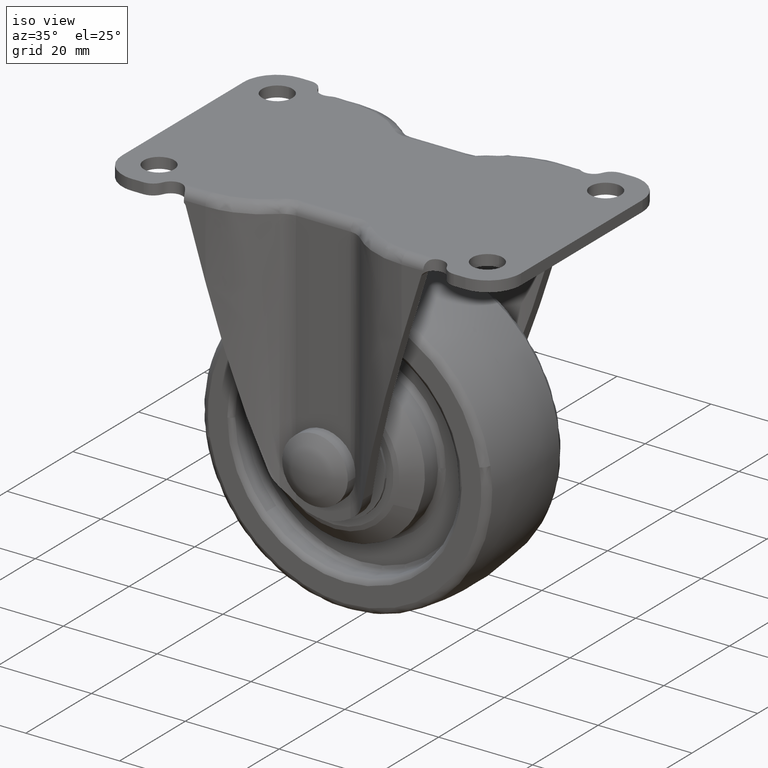
[diagram: clean part render]
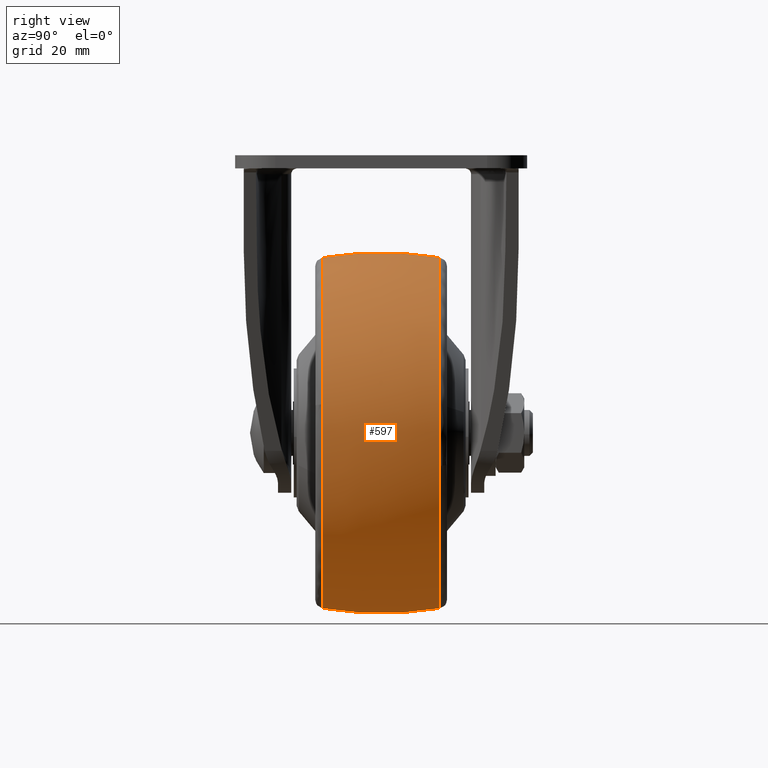
[diagram: tour spotlight — one face highlighted and labeled with its STEP entity id]
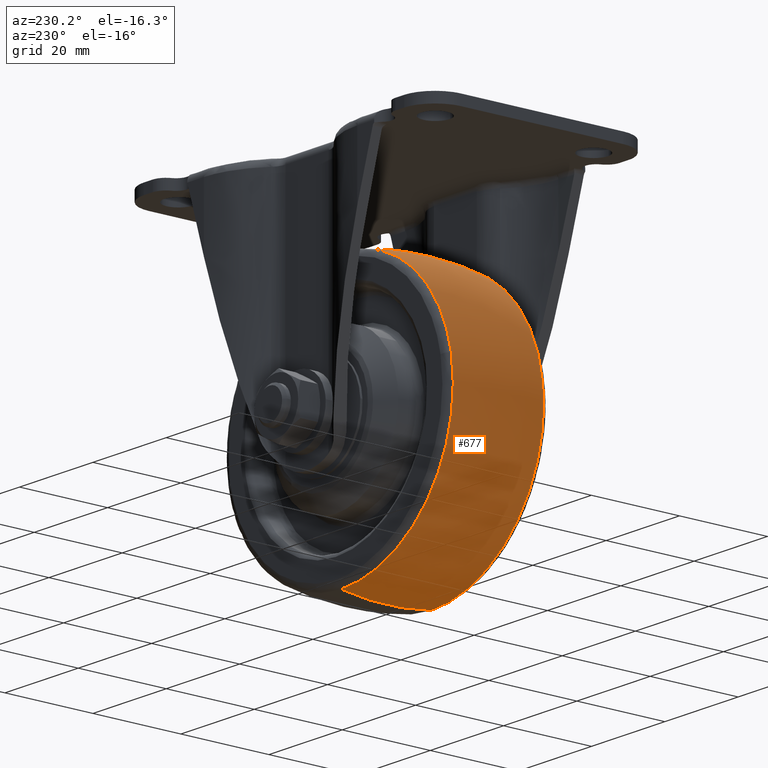
[diagram: tour spotlight — one face highlighted and labeled with its STEP entity id]
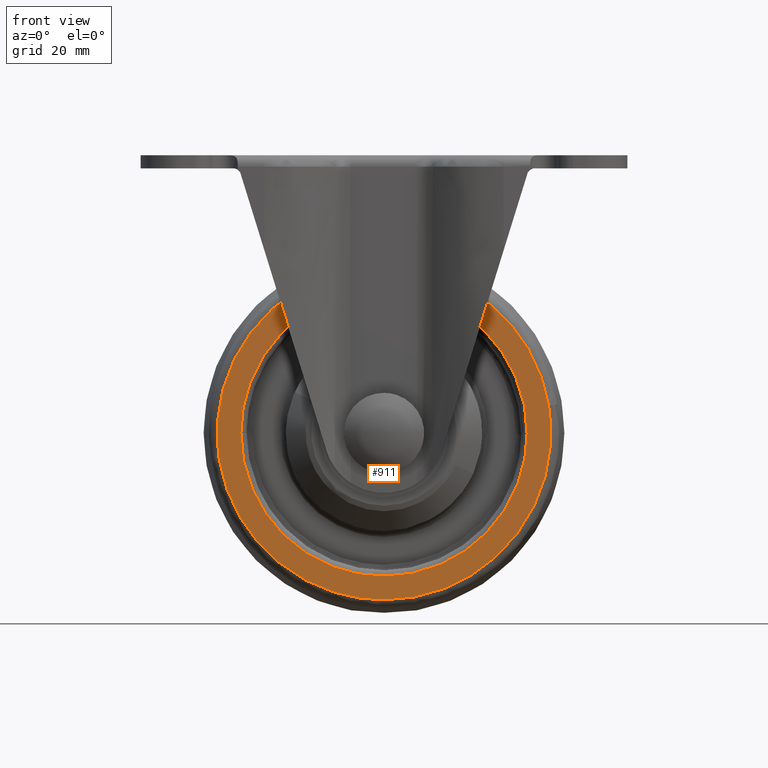
[diagram: tour spotlight — one face highlighted and labeled with its STEP entity id]
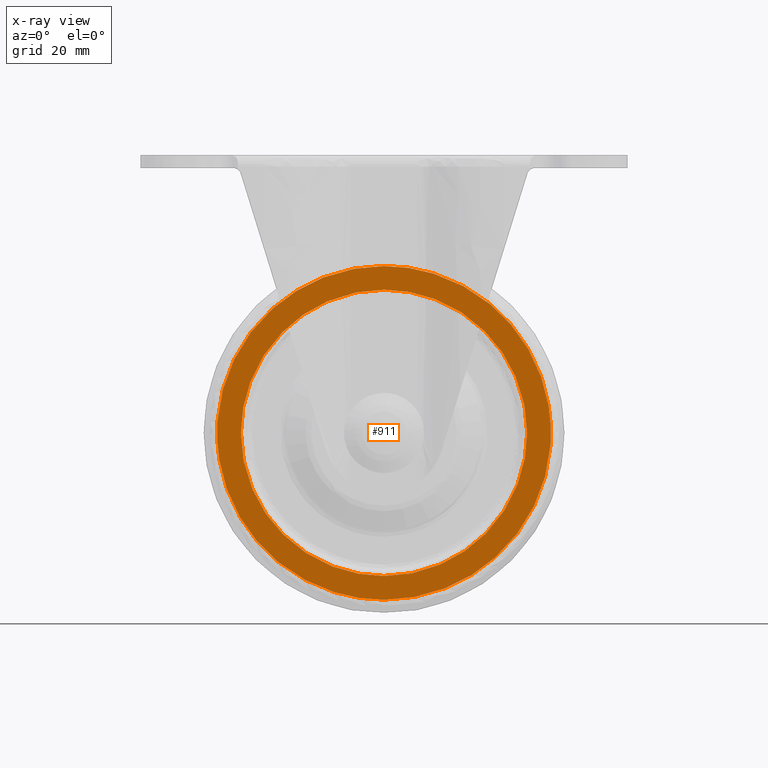
[diagram: x-ray of the same camera — body ghosted, this tour face saturated]
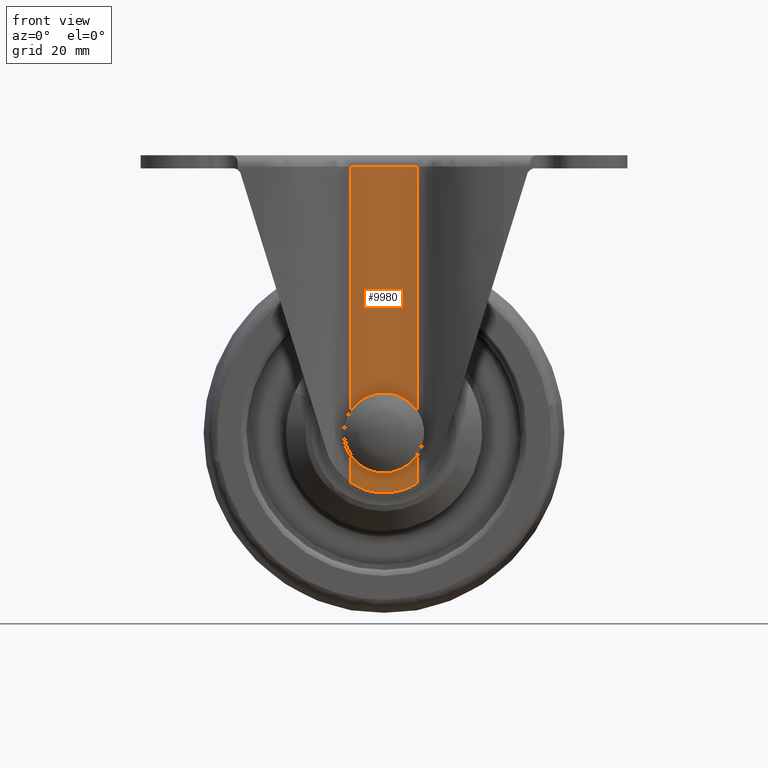
[diagram: tour spotlight — one face highlighted and labeled with its STEP entity id]
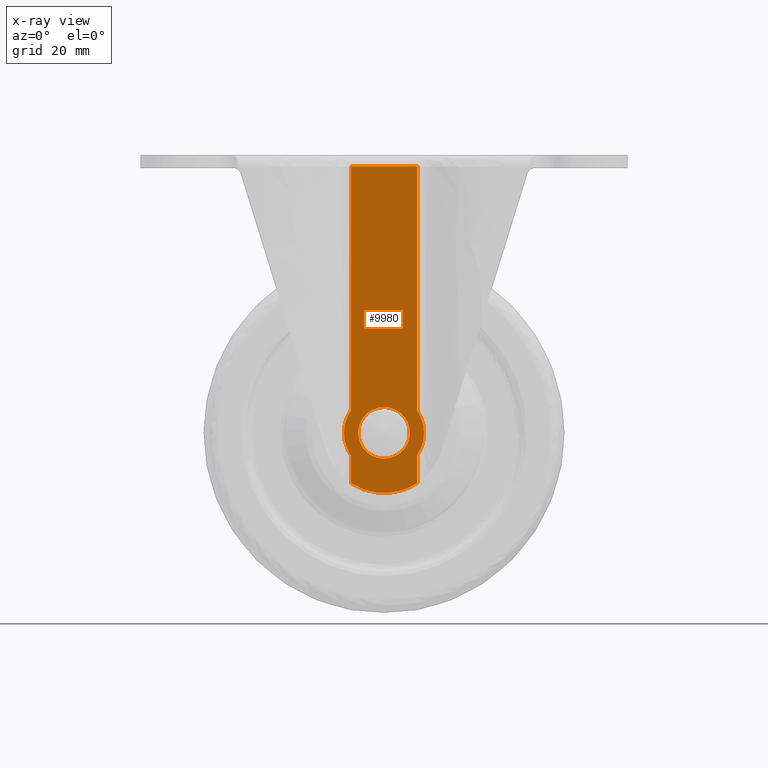
[diagram: x-ray of the same camera — body ghosted, this tour face saturated]
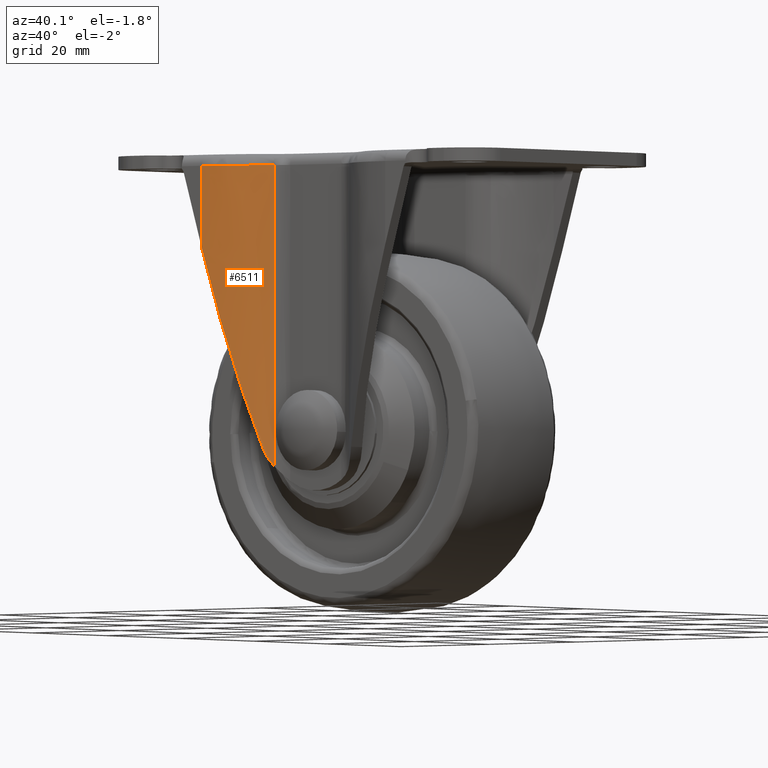
[diagram: tour spotlight — one face highlighted and labeled with its STEP entity id]
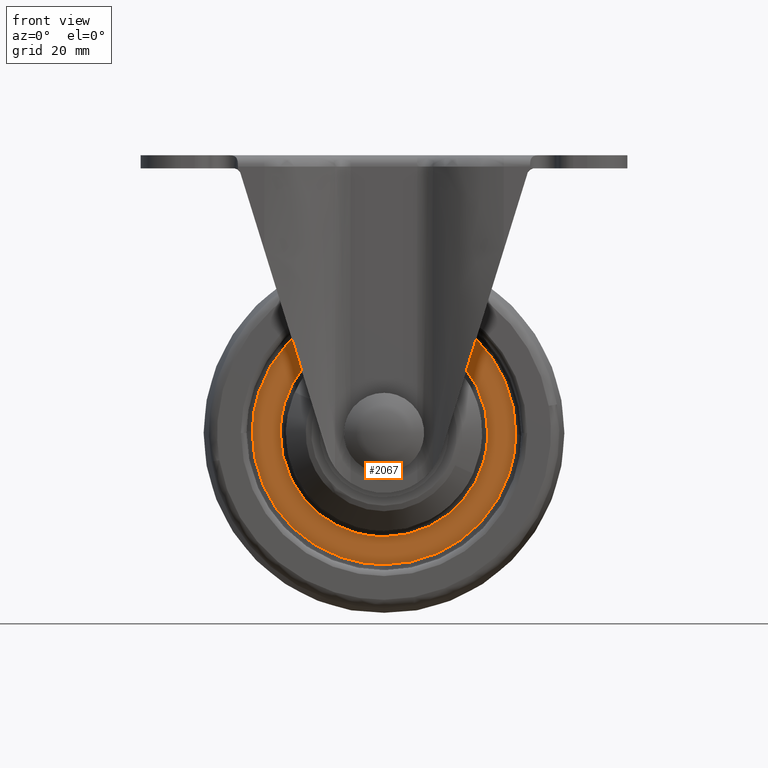
[diagram: tour spotlight — one face highlighted and labeled with its STEP entity id]
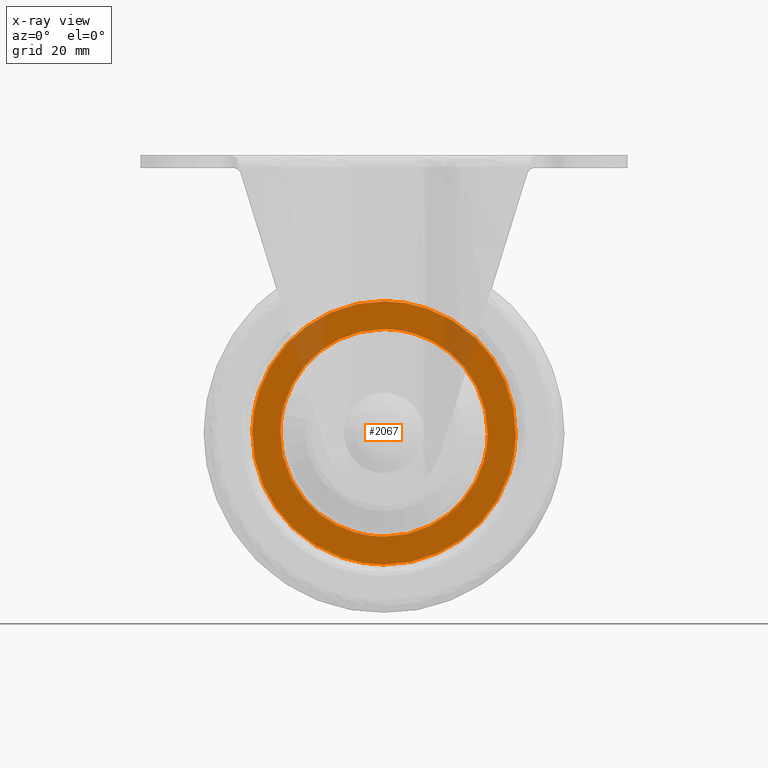
[diagram: x-ray of the same camera — body ghosted, this tour face saturated]
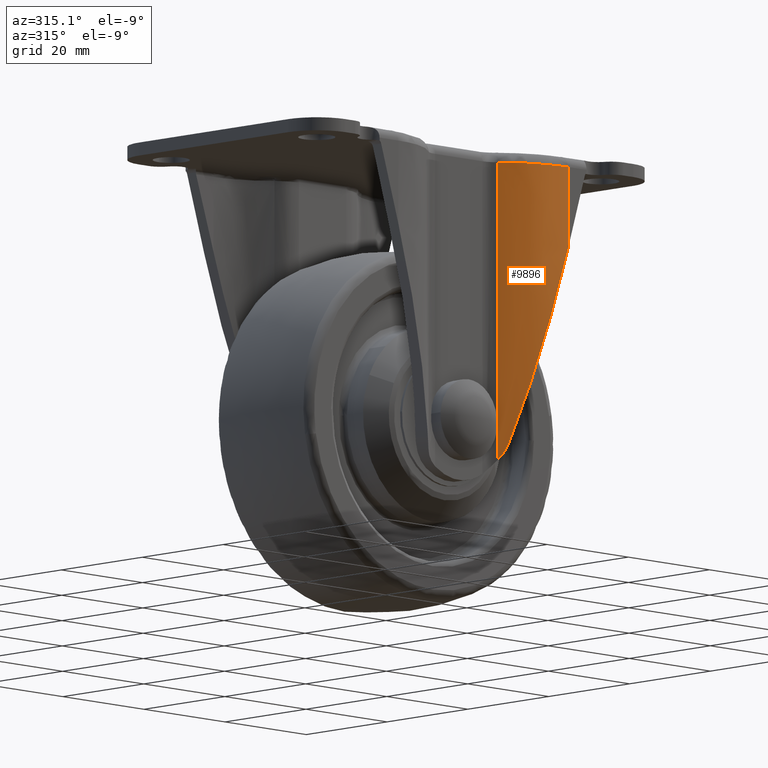
[diagram: tour spotlight — one face highlighted and labeled with its STEP entity id]
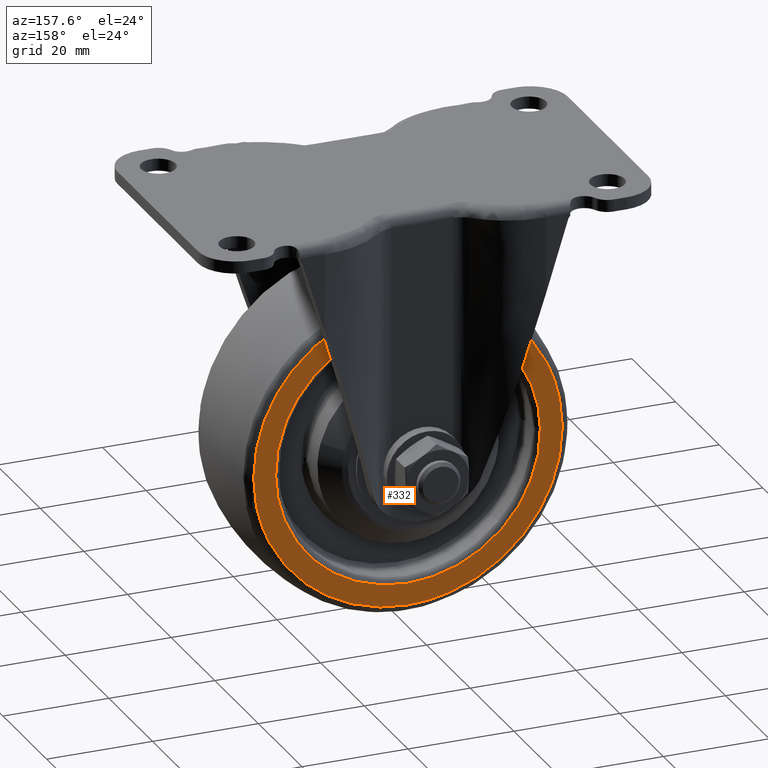
[diagram: tour spotlight — one face highlighted and labeled with its STEP entity id]
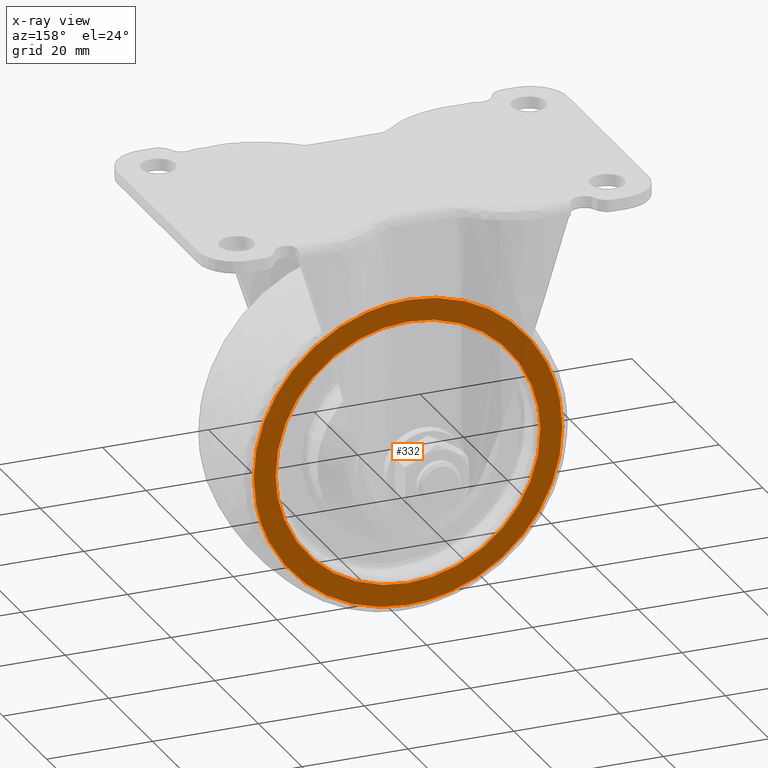
[diagram: x-ray of the same camera — body ghosted, this tour face saturated]
A machine part: a face-by-face anatomy tour. The part has 190 B-rep faces; the first image is the clean iso view, then the 8 largest visible faces are spotlighted one at a time (largest first), each with its STEP entity span.

Face 1 — right view, entity #597. In plain terms, the highlighted face is a freeform B-spline surface patch.
Definition (entity closure, byte-faithful):
#379=CARTESIAN_POINT('',(0.0,10.256388348473591,30.616890324738328));
#380=VERTEX_POINT('',#379);
#394=CARTESIAN_POINT('',(30.074577058850991,10.256388590112140,-5.737030510068976));
#395=VERTEX_POINT('',#394);
#396=CARTESIAN_POINT('',(30.074577058850991,10.256388590112142,-5.737030510068977));
#397=CARTESIAN_POINT('',(30.616886097683061,10.256388581664027,-2.894146031594403));
#398=CARTESIAN_POINT('',(30.616886026227970,10.256388571070501,0.000001753302065));
#399=CARTESIAN_POINT('',(30.616885270311958,10.256388459002657,30.616890205446836));
#400=CARTESIAN_POINT('',(0.0,10.256388348473591,30.616890324738328));
#408=(BOUNDED_CURVE()B_SPLINE_CURVE(2,(#396,#397,#398,#399,#400),.UNSPECIFIED.,.F.,.U.)B_SPLINE_CURVE_WITH_KNOTS((3,2,3),(0.217838636712735,0.250000000000000,0.500000000000000),.UNSPECIFIED.)CURVE()GEOMETRIC_REPRESENTATION_ITEM()RATIONAL_B_SPLINE_CURVE((0.934335800332761,0.962320619141457,1.0,0.707106781186548,1.0))REPRESENTATION_ITEM(''));
#409=EDGE_CURVE('',#395,#380,#408,.T.);
#458=CARTESIAN_POINT('',(0.0,10.256388305395840,-30.616886291153921));
#459=VERTEX_POINT('',#458);
#460=CARTESIAN_POINT('',(0.0,10.256388305395840,-30.616886291153921));
#461=CARTESIAN_POINT('',(25.328490959784702,10.256388439002531,-30.616886435352537));
#462=CARTESIAN_POINT('',(30.074577058850991,10.256388590112142,-5.737030510068977));
#470=(BOUNDED_CURVE()B_SPLINE_CURVE(2,(#460,#461,#462),.UNSPECIFIED.,.F.,.U.)B_SPLINE_CURVE_WITH_KNOTS((3,3),(0.0,0.217838636712735),.UNSPECIFIED.)CURVE()GEOMETRIC_REPRESENTATION_ITEM()RATIONAL_B_SPLINE_CURVE((1.0,0.744786162045091,0.934335800332761))REPRESENTATION_ITEM(''));
#471=EDGE_CURVE('',#459,#395,#470,.T.);
#493=CARTESIAN_POINT('',(-0.850674409447851,-11.289914557888306,-30.428241161321335));
#494=CARTESIAN_POINT('',(-0.880637237293538,-5.695828476783679,-31.499998108642593));
#495=CARTESIAN_POINT('',(-0.880637237293538,3.673804E-015,-31.499998108642590));
#496=CARTESIAN_POINT('',(-0.880637237293538,5.695822688460534,-31.499998108642600));
#497=CARTESIAN_POINT('',(-0.850674469802708,11.289903289578586,-30.428243320187487));
#498=CARTESIAN_POINT('',(-0.427814262117121,-11.289914557888309,-30.428241161321335));
#499=CARTESIAN_POINT('',(-0.442882924043914,-5.695828476783680,-31.499998108642586));
#500=CARTESIAN_POINT('',(-0.442882924043914,3.673804E-015,-31.499998108642600));
#501=CARTESIAN_POINT('',(-0.442882924043914,5.695822688460534,-31.499998108642579));
#502=CARTESIAN_POINT('',(-0.427814292470295,11.289903289578582,-30.428243320187491));
#503=CARTESIAN_POINT('',(30.428243052678756,-11.289914557888309,-30.428241161321335));
#504=CARTESIAN_POINT('',(31.500000000000007,-5.695828476783679,-31.499998108642593));
#505=CARTESIAN_POINT('',(31.500000000000000,3.673804E-015,-31.499998108642579));
#506=CARTESIAN_POINT('',(31.500000000000000,5.695822688460536,-31.499998108642586));
#507=CARTESIAN_POINT('',(30.428245211544880,11.289903289578586,-30.428243320187477));
#508=CARTESIAN_POINT('',(30.428243052678752,-11.289914557888313,0.000001891357428));
#509=CARTESIAN_POINT('',(31.499999999999996,-5.695828476783679,0.000001891357428));
#510=CARTESIAN_POINT('',(31.500000000000000,3.673804E-015,0.000001891357421));
#511=CARTESIAN_POINT('',(31.500000000000000,5.695822688460534,0.000001891357414));
#512=CARTESIAN_POINT('',(30.428245211544883,11.289903289578591,0.000001891357414));
#513=CARTESIAN_POINT('',(30.428243052678756,-11.289914557888309,30.428244944036177));
#514=CARTESIAN_POINT('',(31.500000000000007,-5.695828476783679,31.500001891357410));
#515=CARTESIAN_POINT('',(31.500000000000000,3.673804E-015,31.500001891357414));
#516=CARTESIAN_POINT('',(31.500000000000000,5.695822688460536,31.500001891357417));
#517=CARTESIAN_POINT('',(30.428245211544880,11.289903289578586,30.428247102902311));
#518=CARTESIAN_POINT('',(-0.427814262117121,-11.289914557888308,30.428244944036170));
#519=CARTESIAN_POINT('',(-0.442882924043914,-5.695828476783679,31.500001891357417));
#520=CARTESIAN_POINT('',(-0.442882924043914,3.673804E-015,31.500001891357432));
#521=CARTESIAN_POINT('',(-0.442882924043918,5.695822688460534,31.500001891357424));
#522=CARTESIAN_POINT('',(-0.427814292470298,11.289903289578582,30.428247102902304));
#523=CARTESIAN_POINT('',(-0.850674409447858,-11.289914557888315,30.428244944036177));
#524=CARTESIAN_POINT('',(-0.880637237293545,-5.695828476783679,31.500001891357421));
#525=CARTESIAN_POINT('',(-0.880637237293545,3.673804E-015,31.500001891357421));
#526=CARTESIAN_POINT('',(-0.880637237293548,5.695822688460534,31.500001891357421));
#527=CARTESIAN_POINT('',(-0.850674469802716,11.289903289578584,30.428247102902304));
#535=(BOUNDED_SURFACE()B_SPLINE_SURFACE(2,2,((#493,#498,#503,#508,#513,#518,#523),(#494,#499,#504,#509,#514,#519,#524),(#495,#500,#505,#510,#515,#520,#525),(#496,#501,#506,#511,#516,#521,#526),(#497,#502,#507,#512,#517,#522,#527)),.UNSPECIFIED.,.F.,.F.,.U.)B_SPLINE_SURFACE_WITH_KNOTS((3,2,3),(3,1,2,1,3),(0.0,11.585330134132210,23.170648795012411),(0.0,1.043818177180205,53.234727036190201,105.425635895200200,106.469454072380400),.UNSPECIFIED.)GEOMETRIC_REPRESENTATION_ITEM()RATIONAL_B_SPLINE_SURFACE(((0.969436188067181,0.963823123497999,0.677556830469728,0.958210058928817,0.677556830469728,0.963823123497999,0.969436188067181),(0.985917880823811,0.980209386759845,0.689076189497601,0.974500892695880,0.689076189497601,0.980209386759845,0.985917880823811),(1.011715728752538,1.005857864376269,0.707106781186548,1.0,0.707106781186548,1.005857864376269,1.011715728752538),(0.985917906372087,0.980209412160196,0.689076207353762,0.974500917948305,0.689076207353762,0.980209412160196,0.985917906372087),(0.969436220711683,0.963823155953488,0.677556853285573,0.958210091195294,0.677556853285573,0.963823155953488,0.969436220711683)))REPRESENTATION_ITEM('')SURFACE());
#536=CARTESIAN_POINT('',(0.0,-10.256388539232571,-30.616886250584830));
#537=VERTEX_POINT('',#536);
#538=CARTESIAN_POINT('',(0.0,-10.256388539232571,-30.616886250584827));
#539=CARTESIAN_POINT('',(-3.552714E-015,-5.166213797702407,-31.499997857844207));
#540=CARTESIAN_POINT('',(0.0,-3.823357E-016,-31.499997857844189));
#541=CARTESIAN_POINT('',(0.0,5.166213678157706,-31.499997857844178));
#542=CARTESIAN_POINT('',(0.0,10.256388305395838,-30.616886291153921));
#550=(BOUNDED_CURVE()B_SPLINE_CURVE(2,(#538,#539,#540,#541,#542),.UNSPECIFIED.,.F.,.U.)B_SPLINE_CURVE_WITH_KNOTS((3,2,3),(0.417919565871353,0.500000000000000,0.582080432273361),.UNSPECIFIED.)CURVE()GEOMETRIC_REPRESENTATION_ITEM()RATIONAL_B_SPLINE_CURVE((0.961245327353958,0.976816907001447,1.0,0.976816907525461,0.961245328057895))REPRESENTATION_ITEM(''));
#551=EDGE_CURVE('',#537,#459,#550,.T.);
#552=ORIENTED_EDGE('',*,*,#551,.T.);
#553=ORIENTED_EDGE('',*,*,#471,.T.);
#554=ORIENTED_EDGE('',*,*,#409,.T.);
#555=CARTESIAN_POINT('',(0.0,-10.256399396885650,30.616888020397120));
#556=VERTEX_POINT('',#555);
#557=CARTESIAN_POINT('',(0.0,-10.256399396885650,30.616888020397120));
#558=CARTESIAN_POINT('',(-1.421085E-014,-7.188658470401418,31.149328061638649));
#559=CARTESIAN_POINT('',(-4.263256E-014,-0.326839994223858,31.795458512355410));
#560=CARTESIAN_POINT('',(1.421085E-013,6.553992118414394,31.259715689742279));
#561=CARTESIAN_POINT('',(0.0,10.256388348473591,30.616890324738328));
#562=B_SPLINE_CURVE_WITH_KNOTS('',3,(#557,#558,#559,#560,#561),.UNSPECIFIED.,.F.,.U.,(4,1,4),(-5.797848E-009,9.340788833938255,20.614048210323212),.UNSPECIFIED.);
#563=EDGE_CURVE('',#556,#380,#562,.T.);
#564=ORIENTED_EDGE('',*,*,#563,.F.);
#565=CARTESIAN_POINT('',(30.209250449868151,-10.256395084583710,4.979445335006801));
#566=VERTEX_POINT('',#565);
#567=CARTESIAN_POINT('',(30.209250449868147,-10.256395084583708,4.979445335006801));
#568=CARTESIAN_POINT('',(25.983385337959319,-10.256399513683414,30.616888129165662));
#569=CARTESIAN_POINT('',(0.0,-10.256399396885650,30.616888020397120));
#577=(BOUNDED_CURVE()B_SPLINE_CURVE(2,(#567,#568,#569),.UNSPECIFIED.,.F.,.U.)B_SPLINE_CURVE_WITH_KNOTS((3,3),(0.277993893965628,0.500000000000000),.UNSPECIFIED.)CURVE()GEOMETRIC_REPRESENTATION_ITEM()RATIONAL_B_SPLINE_CURVE((0.941751126895732,0.739903668029408,1.0))REPRESENTATION_ITEM(''));
#578=EDGE_CURVE('',#566,#556,#577,.T.);
#579=ORIENTED_EDGE('',*,*,#578,.F.);
#580=CARTESIAN_POINT('',(0.0,-10.256388539232571,-30.616886250584830));
#581=CARTESIAN_POINT('',(30.616884676135946,-10.256388638354387,-30.616886158277111));
#582=CARTESIAN_POINT('',(30.616885336012309,-10.256394183978710,0.000001085982404));
#583=CARTESIAN_POINT('',(30.616885390032138,-10.256394637963254,2.506408438156698));
#584=CARTESIAN_POINT('',(30.209250449868147,-10.256395084583708,4.979445335006801));
#592=(BOUNDED_CURVE()B_SPLINE_CURVE(2,(#580,#581,#582,#583,#584),.UNSPECIFIED.,.F.,.U.)B_SPLINE_CURVE_WITH_KNOTS((3,2,3),(0.0,0.250000000000000,0.277993893965628),.UNSPECIFIED.)CURVE()GEOMETRIC_REPRESENTATION_ITEM()RATIONAL_B_SPLINE_CURVE((1.0,0.707106781186548,1.0,0.967203113157139,0.941751126895732))REPRESENTATION_ITEM(''));
#593=EDGE_CURVE('',#537,#566,#592,.T.);
#594=ORIENTED_EDGE('',*,*,#593,.F.);
#595=EDGE_LOOP('',(#552,#553,#554,#564,#579,#594));
#596=FACE_OUTER_BOUND('',#595,.T.);
#597=ADVANCED_FACE('',(#596),#535,.T.);

Face 2 — auxiliary view, entity #677. In plain terms, the highlighted face is a freeform B-spline surface patch.
Definition (entity closure, byte-faithful):
#364=CARTESIAN_POINT('',(-30.074577081945659,10.256388594107840,5.737034297189368));
#365=VERTEX_POINT('',#364);
#379=CARTESIAN_POINT('',(0.0,10.256388348473591,30.616890324738328));
#380=VERTEX_POINT('',#379);
#381=CARTESIAN_POINT('',(0.0,10.256388348473591,30.616890324738328));
#382=CARTESIAN_POINT('',(-25.328491155781563,10.256388480042151,30.616890466735498));
#383=CARTESIAN_POINT('',(-30.074577081945659,10.256388594107843,5.737034297189368));
#391=(BOUNDED_CURVE()B_SPLINE_CURVE(2,(#381,#382,#383),.UNSPECIFIED.,.F.,.U.)B_SPLINE_CURVE_WITH_KNOTS((3,3),(0.500000000000000,0.717838638042128),.UNSPECIFIED.)CURVE()GEOMETRIC_REPRESENTATION_ITEM()RATIONAL_B_SPLINE_CURVE((1.0,0.744786160487610,0.934335802646271))REPRESENTATION_ITEM(''));
#392=EDGE_CURVE('',#380,#365,#391,.T.);
#458=CARTESIAN_POINT('',(0.0,10.256388305395840,-30.616886291153921));
#459=VERTEX_POINT('',#458);
#473=CARTESIAN_POINT('',(-30.074577081945659,10.256388594107843,5.737034297189368));
#474=CARTESIAN_POINT('',(-30.616886075504585,10.256388581819191,2.894149936634093));
#475=CARTESIAN_POINT('',(-30.616886005140390,10.256388567346280,0.000002276259664));
#476=CARTESIAN_POINT('',(-30.616885260764871,10.256388414238813,-30.616886173683636));
#477=CARTESIAN_POINT('',(0.0,10.256388305395840,-30.616886291153921));
#485=(BOUNDED_CURVE()B_SPLINE_CURVE(2,(#473,#474,#475,#476,#477),.UNSPECIFIED.,.F.,.U.)B_SPLINE_CURVE_WITH_KNOTS((3,2,3),(0.717838638042128,0.750000000000000,1.0),.UNSPECIFIED.)CURVE()GEOMETRIC_REPRESENTATION_ITEM()RATIONAL_B_SPLINE_CURVE((0.934335802646271,0.962320620698938,1.0,0.707106781186548,1.0))REPRESENTATION_ITEM(''));
#486=EDGE_CURVE('',#365,#459,#485,.T.);
#536=CARTESIAN_POINT('',(0.0,-10.256388539232571,-30.616886250584830));
#537=VERTEX_POINT('',#536);
#538=CARTESIAN_POINT('',(0.0,-10.256388539232571,-30.616886250584827));
#539=CARTESIAN_POINT('',(-3.552714E-015,-5.166213797702407,-31.499997857844207));
#540=CARTESIAN_POINT('',(0.0,-3.823357E-016,-31.499997857844189));
#541=CARTESIAN_POINT('',(0.0,5.166213678157706,-31.499997857844178));
#542=CARTESIAN_POINT('',(0.0,10.256388305395838,-30.616886291153921));
#550=(BOUNDED_CURVE()B_SPLINE_CURVE(2,(#538,#539,#540,#541,#542),.UNSPECIFIED.,.F.,.U.)B_SPLINE_CURVE_WITH_KNOTS((3,2,3),(0.417919565871353,0.500000000000000,0.582080432273361),.UNSPECIFIED.)CURVE()GEOMETRIC_REPRESENTATION_ITEM()RATIONAL_B_SPLINE_CURVE((0.961245327353958,0.976816907001447,1.0,0.976816907525461,0.961245328057895))REPRESENTATION_ITEM(''));
#551=EDGE_CURVE('',#537,#459,#550,.T.);
#555=CARTESIAN_POINT('',(0.0,-10.256399396885650,30.616888020397120));
#556=VERTEX_POINT('',#555);
#557=CARTESIAN_POINT('',(0.0,-10.256399396885650,30.616888020397120));
#558=CARTESIAN_POINT('',(-1.421085E-014,-7.188658470401418,31.149328061638649));
#559=CARTESIAN_POINT('',(-4.263256E-014,-0.326839994223858,31.795458512355410));
#560=CARTESIAN_POINT('',(1.421085E-013,6.553992118414394,31.259715689742279));
#561=CARTESIAN_POINT('',(0.0,10.256388348473591,30.616890324738328));
#562=B_SPLINE_CURVE_WITH_KNOTS('',3,(#557,#558,#559,#560,#561),.UNSPECIFIED.,.F.,.U.,(4,1,4),(-5.797848E-009,9.340788833938255,20.614048210323212),.UNSPECIFIED.);
#563=EDGE_CURVE('',#556,#380,#562,.T.);
#598=CARTESIAN_POINT('',(0.850674409447862,-11.289914557888315,30.428244944036177));
#599=CARTESIAN_POINT('',(0.880637237293548,-5.695828476783679,31.500001891357421));
#600=CARTESIAN_POINT('',(0.880637237293545,3.673804E-015,31.500001891357421));
#601=CARTESIAN_POINT('',(0.880637237293545,5.695822688460534,31.500001891357421));
#602=CARTESIAN_POINT('',(0.850674469802712,11.289903289578584,30.428247102902304));
#603=CARTESIAN_POINT('',(0.427814262117121,-11.289914557888308,30.428244944036170));
#604=CARTESIAN_POINT('',(0.442882924043918,-5.695828476783679,31.500001891357417));
#605=CARTESIAN_POINT('',(0.442882924043918,3.673804E-015,31.500001891357432));
#606=CARTESIAN_POINT('',(0.442882924043914,5.695822688460534,31.500001891357424));
#607=CARTESIAN_POINT('',(0.427814292470291,11.289903289578582,30.428247102902304));
#608=CARTESIAN_POINT('',(-30.428243052678756,-11.289914557888309,30.428244944036177));
#609=CARTESIAN_POINT('',(-31.500000000000007,-5.695828476783679,31.500001891357410));
#610=CARTESIAN_POINT('',(-31.500000000000000,3.673804E-015,31.500001891357414));
#611=CARTESIAN_POINT('',(-31.500000000000000,5.695822688460536,31.500001891357417));
#612=CARTESIAN_POINT('',(-30.428245211544880,11.289903289578586,30.428247102902311));
#613=CARTESIAN_POINT('',(-30.428243052678752,-11.289914557888313,0.000001891357428));
#614=CARTESIAN_POINT('',(-31.499999999999996,-5.695828476783679,0.000001891357428));
#615=CARTESIAN_POINT('',(-31.500000000000000,3.673804E-015,0.000001891357421));
#616=CARTESIAN_POINT('',(-31.500000000000000,5.695822688460534,0.000001891357414));
#617=CARTESIAN_POINT('',(-30.428245211544883,11.289903289578591,0.000001891357414));
#618=CARTESIAN_POINT('',(-30.428243052678756,-11.289914557888309,-30.428241161321335));
#619=CARTESIAN_POINT('',(-31.500000000000007,-5.695828476783679,-31.499998108642593));
#620=CARTESIAN_POINT('',(-31.500000000000000,3.673804E-015,-31.499998108642579));
#621=CARTESIAN_POINT('',(-31.500000000000000,5.695822688460536,-31.499998108642586));
#622=CARTESIAN_POINT('',(-30.428245211544880,11.289903289578586,-30.428243320187477));
#623=CARTESIAN_POINT('',(0.427814262117113,-11.289914557888309,-30.428241161321335));
#624=CARTESIAN_POINT('',(0.442882924043911,-5.695828476783680,-31.499998108642586));
#625=CARTESIAN_POINT('',(0.442882924043907,3.673804E-015,-31.499998108642590));
#626=CARTESIAN_POINT('',(0.442882924043911,5.695822688460534,-31.499998108642579));
#627=CARTESIAN_POINT('',(0.427814292470288,11.289903289578582,-30.428243320187491));
#628=CARTESIAN_POINT('',(0.850674409447848,-11.289914557888308,-30.428241161321349));
#629=CARTESIAN_POINT('',(0.880637237293534,-5.695828476783679,-31.499998108642604));
#630=CARTESIAN_POINT('',(0.880637237293534,3.673804E-015,-31.499998108642600));
#631=CARTESIAN_POINT('',(0.880637237293531,5.695822688460535,-31.499998108642604));
#632=CARTESIAN_POINT('',(0.850674469802701,11.289903289578586,-30.428243320187480));
#640=(BOUNDED_SURFACE()B_SPLINE_SURFACE(2,2,((#598,#603,#608,#613,#618,#623,#628),(#599,#604,#609,#614,#619,#624,#629),(#600,#605,#610,#615,#620,#625,#630),(#601,#606,#611,#616,#621,#626,#631),(#602,#607,#612,#617,#622,#627,#632)),.UNSPECIFIED.,.F.,.F.,.U.)B_SPLINE_SURFACE_WITH_KNOTS((3,2,3),(3,1,2,1,3),(0.0,11.585330134132210,23.170648795012418),(0.0,1.043818177180214,53.234727036190208,105.425635895200200,106.469454072380400),.UNSPECIFIED.)GEOMETRIC_REPRESENTATION_ITEM()RATIONAL_B_SPLINE_SURFACE(((0.969436188067181,0.963823123497999,0.677556830469728,0.958210058928817,0.677556830469728,0.963823123497999,0.969436188067181),(0.985917880823811,0.980209386759845,0.689076189497601,0.974500892695880,0.689076189497601,0.980209386759845,0.985917880823811),(1.011715728752538,1.005857864376269,0.707106781186548,1.0,0.707106781186548,1.005857864376269,1.011715728752538),(0.985917906372087,0.980209412160196,0.689076207353762,0.974500917948305,0.689076207353762,0.980209412160196,0.985917906372087),(0.969436220711683,0.963823155953488,0.677556853285573,0.958210091195294,0.677556853285573,0.963823155953488,0.969436220711683)))REPRESENTATION_ITEM('')SURFACE());
#641=ORIENTED_EDGE('',*,*,#551,.F.);
#642=CARTESIAN_POINT('',(-30.209250762812061,-10.256393316953931,-4.979441603875046));
#643=VERTEX_POINT('',#642);
#644=CARTESIAN_POINT('',(-30.209250762812069,-10.256393316953925,-4.979441603875046));
#645=CARTESIAN_POINT('',(-25.983387041197947,-10.256388655144320,-30.616886358523423));
#646=CARTESIAN_POINT('',(0.0,-10.256388539232571,-30.616886250584830));
#654=(BOUNDED_CURVE()B_SPLINE_CURVE(2,(#644,#645,#646),.UNSPECIFIED.,.F.,.U.)B_SPLINE_CURVE_WITH_KNOTS((3,3),(0.777993883166173,1.0),.UNSPECIFIED.)CURVE()GEOMETRIC_REPRESENTATION_ITEM()RATIONAL_B_SPLINE_CURVE((0.941751146533414,0.739903655377060,1.0))REPRESENTATION_ITEM(''));
#655=EDGE_CURVE('',#643,#537,#654,.T.);
#656=ORIENTED_EDGE('',*,*,#655,.F.);
#657=CARTESIAN_POINT('',(0.0,-10.256399396885650,30.616888020397120));
#658=CARTESIAN_POINT('',(-30.616884671862913,-10.256399495255543,30.616887928793744));
#659=CARTESIAN_POINT('',(-30.616885326704232,-10.256394182340770,0.000000685364149));
#660=CARTESIAN_POINT('',(-30.616885380311842,-10.256393747406833,-2.506405667035800));
#661=CARTESIAN_POINT('',(-30.209250762812069,-10.256393316953925,-4.979441603875046));
#669=(BOUNDED_CURVE()B_SPLINE_CURVE(2,(#657,#658,#659,#660,#661),.UNSPECIFIED.,.F.,.U.)B_SPLINE_CURVE_WITH_KNOTS((3,2,3),(0.500000000000000,0.750000000000000,0.777993883166173),.UNSPECIFIED.)CURVE()GEOMETRIC_REPRESENTATION_ITEM()RATIONAL_B_SPLINE_CURVE((1.0,0.707106781186548,1.0,0.967203125809487,0.941751146533414))REPRESENTATION_ITEM(''));
#670=EDGE_CURVE('',#556,#643,#669,.T.);
#671=ORIENTED_EDGE('',*,*,#670,.F.);
#672=ORIENTED_EDGE('',*,*,#563,.T.);
#673=ORIENTED_EDGE('',*,*,#392,.T.);
#674=ORIENTED_EDGE('',*,*,#486,.T.);
#675=EDGE_LOOP('',(#641,#656,#671,#672,#673,#674));
#676=FACE_OUTER_BOUND('',#675,.T.);
#677=ADVANCED_FACE('',(#676),#640,.T.);

Face 3 — front view, entity #911. An x-ray twin of the same camera follows (body ghosted, this face saturated) — the face is partly hidden behind the body. In plain terms, the highlighted face is a freeform B-spline surface patch.
Definition (entity closure, byte-faithful):
#709=CARTESIAN_POINT('',(28.751004252557809,-11.500000000000000,4.739080071305153));
#710=VERTEX_POINT('',#709);
#724=CARTESIAN_POINT('',(0.0,-11.500000000000000,-29.138960108642578));
#725=VERTEX_POINT('',#724);
#726=CARTESIAN_POINT('',(0.0,-11.500000000000000,-29.138960108642578));
#727=CARTESIAN_POINT('',(29.138962007822247,-11.500000000000000,-29.138960107353231));
#728=CARTESIAN_POINT('',(29.138962017039411,-11.500000000000000,0.000001894166061));
#729=CARTESIAN_POINT('',(29.138962017793961,-11.500000000000002,2.385420782833279));
#730=CARTESIAN_POINT('',(28.751004252557809,-11.499999999999998,4.739080071305153));
#738=(BOUNDED_CURVE()B_SPLINE_CURVE(2,(#726,#727,#728,#729,#730),.UNSPECIFIED.,.F.,.U.)B_SPLINE_CURVE_WITH_KNOTS((3,2,3),(0.0,0.250000000000000,0.277993891203451),.UNSPECIFIED.)CURVE()GEOMETRIC_REPRESENTATION_ITEM()RATIONAL_B_SPLINE_CURVE((1.0,0.707106781186548,1.0,0.967203116393230,0.941751131918462))REPRESENTATION_ITEM(''));
#739=EDGE_CURVE('',#725,#710,#738,.T.);
#741=CARTESIAN_POINT('',(-28.751004252557809,-11.500000000000000,-4.739076288590312));
#742=VERTEX_POINT('',#741);
#743=CARTESIAN_POINT('',(-28.751004252557806,-11.500000000000000,-4.739076288590312));
#744=CARTESIAN_POINT('',(-24.729128833232760,-11.499999999999998,-29.138960110161840));
#745=CARTESIAN_POINT('',(0.0,-11.500000000000000,-29.138960108642578));
#753=(BOUNDED_CURVE()B_SPLINE_CURVE(2,(#743,#744,#745),.UNSPECIFIED.,.F.,.U.)B_SPLINE_CURVE_WITH_KNOTS((3,3),(0.777993891203451,1.0),.UNSPECIFIED.)CURVE()GEOMETRIC_REPRESENTATION_ITEM()RATIONAL_B_SPLINE_CURVE((0.941751131918462,0.739903664793317,1.0))REPRESENTATION_ITEM(''));
#754=EDGE_CURVE('',#742,#725,#753,.T.);
#803=CARTESIAN_POINT('',(0.0,-11.500000000000000,29.138963891357420));
#804=VERTEX_POINT('',#803);
#805=CARTESIAN_POINT('',(0.0,-11.500000000000000,29.138963891357420));
#806=CARTESIAN_POINT('',(-29.138962007822247,-11.500000000000000,29.138963890068066));
#807=CARTESIAN_POINT('',(-29.138962017039400,-11.500000000000000,0.000001888548802));
#808=CARTESIAN_POINT('',(-29.138962017793954,-11.500000000000002,-2.385417000118423));
#809=CARTESIAN_POINT('',(-28.751004252557806,-11.500000000000000,-4.739076288590312));
#817=(BOUNDED_CURVE()B_SPLINE_CURVE(2,(#805,#806,#807,#808,#809),.UNSPECIFIED.,.F.,.U.)B_SPLINE_CURVE_WITH_KNOTS((3,2,3),(0.500000000000000,0.750000000000000,0.777993891203451),.UNSPECIFIED.)CURVE()GEOMETRIC_REPRESENTATION_ITEM()RATIONAL_B_SPLINE_CURVE((1.0,0.707106781186548,1.0,0.967203116393230,0.941751131918462))REPRESENTATION_ITEM(''));
#818=EDGE_CURVE('',#804,#742,#817,.T.);
#820=CARTESIAN_POINT('',(28.751004252557809,-11.499999999999998,4.739080071305153));
#821=CARTESIAN_POINT('',(24.729128833232775,-11.500000000000000,29.138963892876703));
#822=CARTESIAN_POINT('',(0.0,-11.500000000000000,29.138963891357420));
#830=(BOUNDED_CURVE()B_SPLINE_CURVE(2,(#820,#821,#822),.UNSPECIFIED.,.F.,.U.)B_SPLINE_CURVE_WITH_KNOTS((3,3),(0.277993891203451,0.500000000000000),.UNSPECIFIED.)CURVE()GEOMETRIC_REPRESENTATION_ITEM()RATIONAL_B_SPLINE_CURVE((0.941751131918462,0.739903664793317,1.0))REPRESENTATION_ITEM(''));
#831=EDGE_CURVE('',#710,#804,#830,.T.);
#838=CARTESIAN_POINT('',(-32.048325620237073,-11.500000000000000,32.049946082203498));
#839=CARTESIAN_POINT('',(-32.048325620237073,-11.500000000000000,-32.049943862624367));
#840=CARTESIAN_POINT('',(32.048327183293857,-11.500000000000000,32.049946082203498));
#841=CARTESIAN_POINT('',(32.048327183293857,-11.500000000000000,-32.049943862624367));
#842=B_SPLINE_SURFACE_WITH_KNOTS('',1,1,((#838,#840),(#839,#841)),.UNSPECIFIED.,.F.,.F.,.U.,(2,2),(2,2),(0.0,64.099889944827879),(0.0,64.096652803530930),.UNSPECIFIED.);
#843=ORIENTED_EDGE('',*,*,#739,.T.);
#844=ORIENTED_EDGE('',*,*,#831,.T.);
#845=ORIENTED_EDGE('',*,*,#818,.T.);
#846=ORIENTED_EDGE('',*,*,#754,.T.);
#847=EDGE_LOOP('',(#843,#844,#845,#846));
#848=FACE_OUTER_BOUND('',#847,.T.);
#849=CARTESIAN_POINT('',(0.0,-11.500000000000000,24.999901891357421));
#850=VERTEX_POINT('',#849);
#851=CARTESIAN_POINT('',(-24.999899996079719,-11.500000000000000,0.000001891357421));
#852=VERTEX_POINT('',#851);
#853=CARTESIAN_POINT('',(0.0,-11.500000000000000,24.999901891357421));
#854=CARTESIAN_POINT('',(-24.999899998039862,-11.500000000000002,24.999901891357428));
#855=CARTESIAN_POINT('',(-24.999899996079719,-11.500000000000000,0.000001891357421));
#863=(BOUNDED_CURVE()B_SPLINE_CURVE(2,(#853,#854,#855),.UNSPECIFIED.,.F.,.U.)B_SPLINE_CURVE_WITH_KNOTS((3,3),(0.500000000000000,0.750000000000000),.UNSPECIFIED.)CURVE()GEOMETRIC_REPRESENTATION_ITEM()RATIONAL_B_SPLINE_CURVE((1.0,0.707106781186547,1.0))REPRESENTATION_ITEM(''));
#864=EDGE_CURVE('',#850,#852,#863,.T.);
#865=ORIENTED_EDGE('',*,*,#864,.F.);
#866=CARTESIAN_POINT('',(24.999899996079719,-11.500000000000000,0.000001891357414));
#867=VERTEX_POINT('',#866);
#868=CARTESIAN_POINT('',(24.999899996079719,-11.500000000000000,0.000001891357414));
#869=CARTESIAN_POINT('',(24.999899998039865,-11.500000000000004,24.999901891357418));
#870=CARTESIAN_POINT('',(0.0,-11.500000000000000,24.999901891357421));
#878=(BOUNDED_CURVE()B_SPLINE_CURVE(2,(#868,#869,#870),.UNSPECIFIED.,.F.,.U.)B_SPLINE_CURVE_WITH_KNOTS((3,3),(0.250000000000000,0.500000000000000),.UNSPECIFIED.)CURVE()GEOMETRIC_REPRESENTATION_ITEM()RATIONAL_B_SPLINE_CURVE((1.0,0.707106781186547,1.0))REPRESENTATION_ITEM(''));
#879=EDGE_CURVE('',#867,#850,#878,.T.);
#880=ORIENTED_EDGE('',*,*,#879,.F.);
#881=CARTESIAN_POINT('',(0.0,-11.500000000000000,-24.999898108642569));
#882=VERTEX_POINT('',#881);
#883=CARTESIAN_POINT('',(0.0,-11.500000000000000,-24.999898108642569));
#884=CARTESIAN_POINT('',(24.999899998039844,-11.500000000000000,-24.999898108642562));
#885=CARTESIAN_POINT('',(24.999899996079716,-11.500000000000002,0.000001891357414));
#893=(BOUNDED_CURVE()B_SPLINE_CURVE(2,(#883,#884,#885),.UNSPECIFIED.,.F.,.U.)B_SPLINE_CURVE_WITH_KNOTS((3,3),(0.0,0.250000000000000),.UNSPECIFIED.)CURVE()GEOMETRIC_REPRESENTATION_ITEM()RATIONAL_B_SPLINE_CURVE((1.0,0.707106781186548,1.000000000000000))REPRESENTATION_ITEM(''));
#894=EDGE_CURVE('',#882,#867,#893,.T.);
#895=ORIENTED_EDGE('',*,*,#894,.F.);
#896=CARTESIAN_POINT('',(-24.999899996079719,-11.500000000000000,0.000001891357421));
#897=CARTESIAN_POINT('',(-24.999899998039862,-11.500000000000002,-24.999898108642565));
#898=CARTESIAN_POINT('',(0.0,-11.500000000000000,-24.999898108642569));
#906=(BOUNDED_CURVE()B_SPLINE_CURVE(2,(#896,#897,#898),.UNSPECIFIED.,.F.,.U.)B_SPLINE_CURVE_WITH_KNOTS((3,3),(0.750000000000000,1.0),.UNSPECIFIED.)CURVE()GEOMETRIC_REPRESENTATION_ITEM()RATIONAL_B_SPLINE_CURVE((1.0,0.707106781186547,1.0))REPRESENTATION_ITEM(''));
#907=EDGE_CURVE('',#852,#882,#906,.T.);
#908=ORIENTED_EDGE('',*,*,#907,.F.);
#909=EDGE_LOOP('',(#865,#880,#895,#908));
#910=FACE_BOUND('',#909,.T.);
#911=ADVANCED_FACE('',(#848,#910),#842,.T.);

Face 4 — front view, entity #9980. An x-ray twin of the same camera follows (body ghosted, this face saturated) — the face is partly hidden behind the body. In plain terms, the highlighted face is a freeform B-spline surface patch.
Definition (entity closure, byte-faithful):
#4291=CARTESIAN_POINT('',(4.486128001795492,-18.000000000000700,-0.353065930820832));
#4292=VERTEX_POINT('',#4291);
#4298=CARTESIAN_POINT('',(0.0,-18.000000000000700,4.500000000000000));
#4299=VERTEX_POINT('',#4298);
#4300=CARTESIAN_POINT('',(4.486128001795493,-18.000000000000693,-0.353065930820831));
#4301=CARTESIAN_POINT('',(4.500000000000000,-18.000000000000696,-0.176805481557383));
#4302=CARTESIAN_POINT('',(4.500000000000000,-18.000000000000700,0.0));
#4303=CARTESIAN_POINT('',(4.500000000000000,-18.000000000000703,4.500000000000000));
#4304=CARTESIAN_POINT('',(0.0,-18.000000000000700,4.500000000000000));
#4312=(BOUNDED_CURVE()B_SPLINE_CURVE(2,(#4300,#4301,#4302,#4303,#4304),.UNSPECIFIED.,.F.,.U.)B_SPLINE_CURVE_WITH_KNOTS((3,2,3),(0.736331300631027,0.750000000000000,1.0),.UNSPECIFIED.)CURVE()GEOMETRIC_REPRESENTATION_ITEM()RATIONAL_B_SPLINE_CURVE((0.969723356168185,0.983986122579313,1.0,0.707106781186547,1.0))REPRESENTATION_ITEM(''));
#4313=EDGE_CURVE('',#4292,#4299,#4312,.T.);
#4315=CARTESIAN_POINT('',(-4.486128001795492,-18.000000000000700,0.353065930820832));
#4316=VERTEX_POINT('',#4315);
#4317=CARTESIAN_POINT('',(0.0,-18.000000000000700,4.500000000000000));
#4318=CARTESIAN_POINT('',(-4.159757212419585,-18.000000000000707,4.500000000000001));
#4319=CARTESIAN_POINT('',(-4.486128001795493,-18.000000000000696,0.353065930820832));
#4327=(BOUNDED_CURVE()B_SPLINE_CURVE(2,(#4317,#4318,#4319),.UNSPECIFIED.,.F.,.U.)B_SPLINE_CURVE_WITH_KNOTS((3,3),(0.0,0.236331300631027),.UNSPECIFIED.)CURVE()GEOMETRIC_REPRESENTATION_ITEM()RATIONAL_B_SPLINE_CURVE((1.0,0.723120658607235,0.969723356168185))REPRESENTATION_ITEM(''));
#4328=EDGE_CURVE('',#4299,#4316,#4327,.T.);
#4374=CARTESIAN_POINT('',(0.0,-18.000000000000700,-4.500000000000000));
#4375=VERTEX_POINT('',#4374);
#4376=CARTESIAN_POINT('',(-4.486128001795493,-18.000000000000696,0.353065930820832));
#4377=CARTESIAN_POINT('',(-4.500000000000001,-18.000000000000696,0.176805481557384));
#4378=CARTESIAN_POINT('',(-4.500000000000000,-18.000000000000700,0.0));
#4379=CARTESIAN_POINT('',(-4.500000000000000,-18.000000000000703,-4.500000000000000));
#4380=CARTESIAN_POINT('',(0.0,-18.000000000000700,-4.500000000000000));
#4388=(BOUNDED_CURVE()B_SPLINE_CURVE(2,(#4376,#4377,#4378,#4379,#4380),.UNSPECIFIED.,.F.,.U.)B_SPLINE_CURVE_WITH_KNOTS((3,2,3),(0.236331300631027,0.250000000000000,0.500000000000000),.UNSPECIFIED.)CURVE()GEOMETRIC_REPRESENTATION_ITEM()RATIONAL_B_SPLINE_CURVE((0.969723356168185,0.983986122579313,1.0,0.707106781186547,1.0))REPRESENTATION_ITEM(''));
#4389=EDGE_CURVE('',#4316,#4375,#4388,.T.);
#4391=CARTESIAN_POINT('',(0.0,-18.000000000000700,-4.500000000000000));
#4392=CARTESIAN_POINT('',(4.159757212419585,-18.000000000000707,-4.499999999999999));
#4393=CARTESIAN_POINT('',(4.486128001795493,-18.000000000000693,-0.353065930820831));
#4401=(BOUNDED_CURVE()B_SPLINE_CURVE(2,(#4391,#4392,#4393),.UNSPECIFIED.,.F.,.U.)B_SPLINE_CURVE_WITH_KNOTS((3,3),(0.500000000000000,0.736331300631027),.UNSPECIFIED.)CURVE()GEOMETRIC_REPRESENTATION_ITEM()RATIONAL_B_SPLINE_CURVE((1.0,0.723120658607235,0.969723356168185))REPRESENTATION_ITEM(''));
#4402=EDGE_CURVE('',#4375,#4292,#4401,.T.);
#7165=CARTESIAN_POINT('',(-5.816739000000100,-18.0,3.894296779378525));
#7166=VERTEX_POINT('',#7165);
#7167=CARTESIAN_POINT('',(-5.816739000000100,-18.0,-3.894296779378470));
#7168=VERTEX_POINT('',#7167);
#7169=CARTESIAN_POINT('',(-5.816739000000095,-18.0,3.894296779378518));
#7170=CARTESIAN_POINT('',(-8.423964011450250,-18.000000000000004,2.341877E-014));
#7171=CARTESIAN_POINT('',(-5.816739000000116,-18.0,-3.894296779378486));
#7179=(BOUNDED_CURVE()B_SPLINE_CURVE(2,(#7169,#7170,#7171),.UNSPECIFIED.,.F.,.U.)CURVE()GEOMETRIC_REPRESENTATION_ITEM()QUASI_UNIFORM_CURVE()RATIONAL_B_SPLINE_CURVE((1.0,0.830962714285729,1.0))REPRESENTATION_ITEM(''));
#7180=EDGE_CURVE('',#7166,#7168,#7179,.T.);
#7232=CARTESIAN_POINT('',(5.816738999999900,-18.0,-3.894296779378810));
#7233=VERTEX_POINT('',#7232);
#7234=CARTESIAN_POINT('',(5.816738999999900,-18.0,3.894296779378805));
#7235=VERTEX_POINT('',#7234);
#7236=CARTESIAN_POINT('',(5.816738999999901,-18.0,-3.894296779378808));
#7237=CARTESIAN_POINT('',(8.423964011450545,-18.000000000000004,-1.301043E-015));
#7238=CARTESIAN_POINT('',(5.816738999999902,-18.0,3.894296779378806));
#7246=(BOUNDED_CURVE()B_SPLINE_CURVE(2,(#7236,#7237,#7238),.UNSPECIFIED.,.F.,.U.)CURVE()GEOMETRIC_REPRESENTATION_ITEM()QUASI_UNIFORM_CURVE()RATIONAL_B_SPLINE_CURVE((1.0,0.830962714285700,1.0))REPRESENTATION_ITEM(''));
#7247=EDGE_CURVE('',#7233,#7235,#7246,.T.);
#8327=CARTESIAN_POINT('',(-5.816739000000100,-18.0,46.500000000000000));
#8328=VERTEX_POINT('',#8327);
#8388=CARTESIAN_POINT('',(5.816738999999900,-18.0,46.500000000000000));
#8389=VERTEX_POINT('',#8388);
#8411=CARTESIAN_POINT('',(5.816738999999900,-18.0,46.500000000000000));
#8412=CARTESIAN_POINT('',(-5.816739000000100,-18.0,46.500000000000000));
#8413=QUASI_UNIFORM_CURVE('',1,(#8411,#8412),.UNSPECIFIED.,.F.,.U.);
#8414=EDGE_CURVE('',#8389,#8328,#8413,.T.);
#9046=CARTESIAN_POINT('',(5.816738999999900,-18.0,-8.741598675635951));
#9047=VERTEX_POINT('',#9046);
#9069=CARTESIAN_POINT('',(-5.816739000000100,-18.0,-8.741598675635819));
#9070=VERTEX_POINT('',#9069);
#9071=CARTESIAN_POINT('',(-5.816739000000098,-18.0,-8.741598675635817));
#9072=CARTESIAN_POINT('',(-1.439820E-013,-18.000000000000007,-12.612109534069884));
#9073=CARTESIAN_POINT('',(5.816738999999897,-18.0,-8.741598675635952));
#9081=(BOUNDED_CURVE()B_SPLINE_CURVE(2,(#9071,#9072,#9073),.UNSPECIFIED.,.F.,.U.)CURVE()GEOMETRIC_REPRESENTATION_ITEM()QUASI_UNIFORM_CURVE()RATIONAL_B_SPLINE_CURVE((1.0,0.832533207203418,1.0))REPRESENTATION_ITEM(''));
#9082=EDGE_CURVE('',#9070,#9047,#9081,.T.);
#9911=CARTESIAN_POINT('',(5.816738999999900,-18.0,3.894296779378805));
#9912=CARTESIAN_POINT('',(5.816738999999900,-18.0,46.500000000000000));
#9913=QUASI_UNIFORM_CURVE('',1,(#9911,#9912),.UNSPECIFIED.,.F.,.U.);
#9914=EDGE_CURVE('',#7235,#8389,#9913,.T.);
#9917=CARTESIAN_POINT('',(5.816738999999900,-18.0,-8.741598675635951));
#9918=CARTESIAN_POINT('',(5.816738999999900,-18.0,-3.894296779378810));
#9919=QUASI_UNIFORM_CURVE('',1,(#9917,#9918),.UNSPECIFIED.,.F.,.U.);
#9920=EDGE_CURVE('',#9047,#7233,#9919,.T.);
#9942=CARTESIAN_POINT('',(-5.816739000000100,-18.0,-8.741598675635819));
#9943=CARTESIAN_POINT('',(-5.816739000000100,-18.0,-3.894296779378470));
#9944=QUASI_UNIFORM_CURVE('',1,(#9942,#9943),.UNSPECIFIED.,.F.,.U.);
#9945=EDGE_CURVE('',#9070,#7168,#9944,.T.);
#9948=CARTESIAN_POINT('',(-5.816739000000100,-18.0,3.894296779378525));
#9949=CARTESIAN_POINT('',(-5.816739000000100,-18.0,46.500000000000000));
#9950=QUASI_UNIFORM_CURVE('',1,(#9948,#9949),.UNSPECIFIED.,.F.,.U.);
#9951=EDGE_CURVE('',#7166,#8328,#9950,.T.);
#9959=CARTESIAN_POINT('',(-7.699299972865169,-18.0,-13.347149889522809));
#9960=CARTESIAN_POINT('',(-7.699299972865169,-18.0,49.347151418382069));
#9961=CARTESIAN_POINT('',(7.699300348374431,-18.0,-13.347149889522809));
#9962=CARTESIAN_POINT('',(7.699300348374431,-18.0,49.347151418382069));
#9963=B_SPLINE_SURFACE_WITH_KNOTS('',1,1,((#9959,#9961),(#9960,#9962)),.UNSPECIFIED.,.F.,.F.,.U.,(2,2),(2,2),(0.0,62.694301307904880),(0.0,15.398600321239600),.UNSPECIFIED.);
#9964=ORIENTED_EDGE('',*,*,#9951,.F.);
#9965=ORIENTED_EDGE('',*,*,#7180,.T.);
#9966=ORIENTED_EDGE('',*,*,#9945,.F.);
#9967=ORIENTED_EDGE('',*,*,#9082,.T.);
#9968=ORIENTED_EDGE('',*,*,#9920,.T.);
#9969=ORIENTED_EDGE('',*,*,#7247,.T.);
#9970=ORIENTED_EDGE('',*,*,#9914,.T.);
#9971=ORIENTED_EDGE('',*,*,#8414,.T.);
#9972=EDGE_LOOP('',(#9964,#9965,#9966,#9967,#9968,#9969,#9970,#9971));
#9973=FACE_OUTER_BOUND('',#9972,.T.);
#9974=ORIENTED_EDGE('',*,*,#4402,.F.);
#9975=ORIENTED_EDGE('',*,*,#4389,.F.);
#9976=ORIENTED_EDGE('',*,*,#4328,.F.);
#9977=ORIENTED_EDGE('',*,*,#4313,.F.);
#9978=EDGE_LOOP('',(#9974,#9975,#9976,#9977));
#9979=FACE_BOUND('',#9978,.T.);
#9980=ADVANCED_FACE('',(#9973,#9979),#9963,.F.);

Face 5 — auxiliary view, entity #6511. In plain terms, the highlighted face is a freeform B-spline surface patch.
Definition (entity closure, byte-faithful):
#5413=CARTESIAN_POINT('',(-20.916408000000100,-24.0,31.979947646665000));
#5414=VERTEX_POINT('',#5413);
#5479=CARTESIAN_POINT('',(-10.030687000000000,-20.335308797167801,-3.104079999999895));
#5480=VERTEX_POINT('',#5479);
#5486=CARTESIAN_POINT('',(-10.030686999999990,-20.335308797167801,-3.104079999999870));
#5487=CARTESIAN_POINT('',(-14.856686126641510,-23.999999999999996,12.449826514953987));
#5488=CARTESIAN_POINT('',(-20.916408000000100,-24.0,31.979947646664989));
#5496=(BOUNDED_CURVE()B_SPLINE_CURVE(2,(#5486,#5487,#5488),.UNSPECIFIED.,.F.,.U.)CURVE()GEOMETRIC_REPRESENTATION_ITEM()QUASI_UNIFORM_CURVE()RATIONAL_B_SPLINE_CURVE((1.0,0.947735734339243,1.0))REPRESENTATION_ITEM(''));
#5497=EDGE_CURVE('',#5480,#5414,#5496,.T.);
#6454=CARTESIAN_POINT('',(-8.091304367319953,-18.629992747860712,-7.392263553110761));
#6455=CARTESIAN_POINT('',(-8.091304367319953,-18.629992747860712,47.847306588827777));
#6456=CARTESIAN_POINT('',(-13.655712149721770,-24.280360716273282,-7.392263553110761));
#6457=CARTESIAN_POINT('',(-13.655712149721770,-24.280360716273282,47.847306588827784));
#6458=CARTESIAN_POINT('',(-21.580588581884495,-23.987742052704878,-7.392263553110761));
#6459=CARTESIAN_POINT('',(-21.580588581884495,-23.987742052704878,47.847306588827770));
#6467=(BOUNDED_SURFACE()B_SPLINE_SURFACE(1,2,((#6454,#6456,#6458),(#6455,#6457,#6459)),.UNSPECIFIED.,.F.,.F.,.U.)B_SPLINE_SURFACE_WITH_KNOTS((2,2),(3,3),(0.0,55.239570141938543),(0.0,15.157546452384439),.UNSPECIFIED.)GEOMETRIC_REPRESENTATION_ITEM()RATIONAL_B_SPLINE_SURFACE(((0.999764907633771,0.911008253429533,0.991261946136416),(0.999764907633771,0.911008253429533,0.991261946136416)))REPRESENTATION_ITEM('')SURFACE());
#6468=CARTESIAN_POINT('',(-8.562133328561931,-19.090909080021600,-6.077818100595860));
#6469=VERTEX_POINT('',#6468);
#6470=CARTESIAN_POINT('',(-8.562133328561741,-19.090909080021451,46.500000000000000));
#6471=VERTEX_POINT('',#6470);
#6472=CARTESIAN_POINT('',(-8.562133328561931,-19.090909080021600,-6.077818100595860));
#6473=CARTESIAN_POINT('',(-8.562133328561741,-19.090909080021451,46.500000000000000));
#6474=QUASI_UNIFORM_CURVE('',1,(#6472,#6473),.UNSPECIFIED.,.F.,.U.);
#6475=EDGE_CURVE('',#6469,#6471,#6474,.T.);
#6476=ORIENTED_EDGE('',*,*,#6475,.T.);
#6477=CARTESIAN_POINT('',(-20.916408000000100,-24.0,46.500000000000000));
#6478=VERTEX_POINT('',#6477);
#6479=CARTESIAN_POINT('',(-8.562133328561741,-19.090909080021451,46.500000000000000));
#6480=CARTESIAN_POINT('',(-13.763933208156105,-24.0,46.500000000000000));
#6481=CARTESIAN_POINT('',(-20.916408000000100,-24.0,46.500000000000000));
#6489=(BOUNDED_CURVE()B_SPLINE_CURVE(2,(#6479,#6480,#6481),.UNSPECIFIED.,.F.,.U.)CURVE()GEOMETRIC_REPRESENTATION_ITEM()QUASI_UNIFORM_CURVE()RATIONAL_B_SPLINE_CURVE((1.0,0.929320376156095,1.0))REPRESENTATION_ITEM(''));
#6490=EDGE_CURVE('',#6471,#6478,#6489,.T.);
#6491=ORIENTED_EDGE('',*,*,#6490,.T.);
#6492=CARTESIAN_POINT('',(-20.916408000000100,-24.0,31.979947646665000));
#6493=CARTESIAN_POINT('',(-20.916408000000100,-24.0,46.500000000000000));
#6494=QUASI_UNIFORM_CURVE('',1,(#6492,#6493),.UNSPECIFIED.,.F.,.U.);
#6495=EDGE_CURVE('',#5414,#6478,#6494,.T.);
#6496=ORIENTED_EDGE('',*,*,#6495,.F.);
#6497=ORIENTED_EDGE('',*,*,#5497,.F.);
#6498=CARTESIAN_POINT('',(-8.562133328561931,-19.090909080021600,-6.077818100595860));
#6499=CARTESIAN_POINT('',(-8.860593957604120,-19.372575004472530,-5.657361337396365));
#6500=CARTESIAN_POINT('',(-9.140085857719880,-19.617092602311349,-5.198497884660218));
#6501=CARTESIAN_POINT('',(-9.516937750163043,-19.931217518858510,-4.444860323491451));
#6502=CARTESIAN_POINT('',(-9.633548002448453,-20.025535038949489,-4.186471607910992));
#6503=CARTESIAN_POINT('',(-9.847152717087539,-20.194722622681411,-3.655868570624357));
#6504=CARTESIAN_POINT('',(-9.944198528133356,-20.269632546125170,-3.383564298477533));
#6505=CARTESIAN_POINT('',(-10.030687257551280,-20.335308992743052,-3.104080079701295));
#6506=B_SPLINE_CURVE_WITH_KNOTS('',3,(#6498,#6499,#6500,#6501,#6502,#6503,#6504,#6505),.UNSPECIFIED.,.F.,.U.,(4,2,2,4),(0.0,0.500000000000001,0.750000000000000,1.0),.UNSPECIFIED.);
#6507=EDGE_CURVE('',#6469,#5480,#6506,.T.);
#6508=ORIENTED_EDGE('',*,*,#6507,.F.);
#6509=EDGE_LOOP('',(#6476,#6491,#6496,#6497,#6508));
#6510=FACE_OUTER_BOUND('',#6509,.T.);
#6511=ADVANCED_FACE('',(#6510),#6467,.T.);

Face 6 — front view, entity #2067. An x-ray twin of the same camera follows (body ghosted, this face saturated) — the face is partly hidden behind the body. In plain terms, the highlighted face is a freeform B-spline surface patch.
Definition (entity closure, byte-faithful):
#1859=CARTESIAN_POINT('',(-22.998084059114440,-6.500000000000001,0.289019553271160));
#1860=VERTEX_POINT('',#1859);
#1874=CARTESIAN_POINT('',(0.0,-6.500000000000000,22.999901891357421));
#1875=VERTEX_POINT('',#1874);
#1876=CARTESIAN_POINT('',(0.0,-6.500000000000000,22.999901891357421));
#1877=CARTESIAN_POINT('',(-22.712675653188498,-6.500000000000001,22.999901891574460));
#1878=CARTESIAN_POINT('',(-22.998084059114440,-6.500000000000001,0.289019553271160));
#1886=(BOUNDED_CURVE()B_SPLINE_CURVE(2,(#1876,#1877,#1878),.UNSPECIFIED.,.F.,.U.)B_SPLINE_CURVE_WITH_KNOTS((3,3),(0.500000000000000,0.747784295915866),.UNSPECIFIED.)CURVE()GEOMETRIC_REPRESENTATION_ITEM()RATIONAL_B_SPLINE_CURVE((1.0,0.709702639991108,0.994854295630521))REPRESENTATION_ITEM(''));
#1887=EDGE_CURVE('',#1875,#1860,#1886,.T.);
#1889=CARTESIAN_POINT('',(22.998084059114440,-6.500000000000002,-0.289015770556311));
#1890=VERTEX_POINT('',#1889);
#1891=CARTESIAN_POINT('',(22.998084059114444,-6.500000000000002,-0.289015770556311));
#1892=CARTESIAN_POINT('',(22.999900034433562,-6.500000000000001,-0.144512644945280));
#1893=CARTESIAN_POINT('',(22.999900034325051,-6.500000000000001,0.000001890926058));
#1894=CARTESIAN_POINT('',(22.999900017054692,-6.500000000000000,22.999901891143097));
#1895=CARTESIAN_POINT('',(0.0,-6.500000000000000,22.999901891357421));
#1903=(BOUNDED_CURVE()B_SPLINE_CURVE(2,(#1891,#1892,#1893,#1894,#1895),.UNSPECIFIED.,.F.,.U.)B_SPLINE_CURVE_WITH_KNOTS((3,2,3),(0.247784295915867,0.250000000000000,0.500000000000000),.UNSPECIFIED.)CURVE()GEOMETRIC_REPRESENTATION_ITEM()RATIONAL_B_SPLINE_CURVE((0.994854295630521,0.997404141195440,1.0,0.707106781186547,1.0))REPRESENTATION_ITEM(''));
#1904=EDGE_CURVE('',#1890,#1875,#1903,.T.);
#1954=CARTESIAN_POINT('',(0.0,-6.500000000000000,-22.999898108642579));
#1955=VERTEX_POINT('',#1954);
#1956=CARTESIAN_POINT('',(0.0,-6.500000000000000,-22.999898108642579));
#1957=CARTESIAN_POINT('',(22.712675653188516,-6.499999999999999,-22.999898108859632));
#1958=CARTESIAN_POINT('',(22.998084059114444,-6.500000000000002,-0.289015770556311));
#1966=(BOUNDED_CURVE()B_SPLINE_CURVE(2,(#1956,#1957,#1958),.UNSPECIFIED.,.F.,.U.)B_SPLINE_CURVE_WITH_KNOTS((3,3),(0.0,0.247784295915867),.UNSPECIFIED.)CURVE()GEOMETRIC_REPRESENTATION_ITEM()RATIONAL_B_SPLINE_CURVE((1.0,0.709702639991107,0.994854295630521))REPRESENTATION_ITEM(''));
#1967=EDGE_CURVE('',#1955,#1890,#1966,.T.);
#1969=CARTESIAN_POINT('',(-22.998084059114440,-6.500000000000001,0.289019553271160));
#1970=CARTESIAN_POINT('',(-22.999900034433555,-6.500000000000002,0.144516427660129));
#1971=CARTESIAN_POINT('',(-22.999900034325051,-6.500000000000001,0.000001891788784));
#1972=CARTESIAN_POINT('',(-22.999900017054692,-6.500000000000000,-22.999898108428262));
#1973=CARTESIAN_POINT('',(0.0,-6.500000000000000,-22.999898108642579));
#1981=(BOUNDED_CURVE()B_SPLINE_CURVE(2,(#1969,#1970,#1971,#1972,#1973),.UNSPECIFIED.,.F.,.U.)B_SPLINE_CURVE_WITH_KNOTS((3,2,3),(0.747784295915866,0.750000000000000,1.0),.UNSPECIFIED.)CURVE()GEOMETRIC_REPRESENTATION_ITEM()RATIONAL_B_SPLINE_CURVE((0.994854295630521,0.997404141195440,1.0,0.707106781186547,1.0))REPRESENTATION_ITEM(''));
#1982=EDGE_CURVE('',#1860,#1955,#1981,.T.);
#1990=CARTESIAN_POINT('',(-25.295592567470472,-6.500000000000000,25.297591812200888));
#1991=CARTESIAN_POINT('',(-25.295592567470472,-6.500000000000000,-25.297589263296832));
#1992=CARTESIAN_POINT('',(25.295593801183841,-6.500000000000000,25.297591812200888));
#1993=CARTESIAN_POINT('',(25.295593801183841,-6.500000000000000,-25.297589263296832));
#1994=B_SPLINE_SURFACE_WITH_KNOTS('',1,1,((#1990,#1992),(#1991,#1993)),.UNSPECIFIED.,.F.,.F.,.U.,(2,2),(2,2),(0.0,50.595181075497713),(0.0,50.591186368654313),.UNSPECIFIED.);
#1995=ORIENTED_EDGE('',*,*,#1967,.T.);
#1996=ORIENTED_EDGE('',*,*,#1904,.T.);
#1997=ORIENTED_EDGE('',*,*,#1887,.T.);
#1998=ORIENTED_EDGE('',*,*,#1982,.T.);
#1999=EDGE_LOOP('',(#1995,#1996,#1997,#1998));
#2000=FACE_OUTER_BOUND('',#1999,.T.);
#2001=CARTESIAN_POINT('',(0.0,-6.500000000000000,-18.123197108642589));
#2002=VERTEX_POINT('',#2001);
#2003=CARTESIAN_POINT('',(18.121768065802790,-6.500000000000000,-0.227734950317043));
#2004=VERTEX_POINT('',#2003);
#2005=CARTESIAN_POINT('',(0.0,-6.500000000000000,-18.123197108642589));
#2006=CARTESIAN_POINT('',(17.896875219034712,-6.500000000000001,-18.123197108626329));
#2007=CARTESIAN_POINT('',(18.121768065802783,-6.500000000000001,-0.227734950317043));
#2015=(BOUNDED_CURVE()B_SPLINE_CURVE(2,(#2005,#2006,#2007),.UNSPECIFIED.,.F.,.U.)B_SPLINE_CURVE_WITH_KNOTS((3,3),(0.0,0.247784295919214),.UNSPECIFIED.)CURVE()GEOMETRIC_REPRESENTATION_ITEM()RATIONAL_B_SPLINE_CURVE((1.0,0.709702639987185,0.994854295638226))REPRESENTATION_ITEM(''));
#2016=EDGE_CURVE('',#2002,#2004,#2015,.T.);
#2017=ORIENTED_EDGE('',*,*,#2016,.F.);
#2018=CARTESIAN_POINT('',(-18.121768065802780,-6.500000000000000,0.227738733031899));
#2019=VERTEX_POINT('',#2018);
#2020=CARTESIAN_POINT('',(-18.121768065802783,-6.500000000000000,0.227738733031899));
#2021=CARTESIAN_POINT('',(-18.123198997420516,-6.500000000000001,0.113874807641892));
#2022=CARTESIAN_POINT('',(-18.123198997428648,-6.500000000000001,0.000001891325105));
#2023=CARTESIAN_POINT('',(-18.123198998722405,-6.500000000000001,-18.123197108658644));
#2024=CARTESIAN_POINT('',(0.0,-6.500000000000000,-18.123197108642589));
#2032=(BOUNDED_CURVE()B_SPLINE_CURVE(2,(#2020,#2021,#2022,#2023,#2024),.UNSPECIFIED.,.F.,.U.)B_SPLINE_CURVE_WITH_KNOTS((3,2,3),(0.747784295919214,0.750000000000000,1.0),.UNSPECIFIED.)CURVE()GEOMETRIC_REPRESENTATION_ITEM()RATIONAL_B_SPLINE_CURVE((0.994854295638226,0.997404141199362,1.0,0.707106781186548,1.0))REPRESENTATION_ITEM(''));
#2033=EDGE_CURVE('',#2019,#2002,#2032,.T.);
#2034=ORIENTED_EDGE('',*,*,#2033,.F.);
#2035=CARTESIAN_POINT('',(0.0,-6.500000000000000,18.123200891357421));
#2036=VERTEX_POINT('',#2035);
#2037=CARTESIAN_POINT('',(0.0,-6.500000000000000,18.123200891357421));
#2038=CARTESIAN_POINT('',(-17.896875219034687,-6.500000000000000,18.123200891341163));
#2039=CARTESIAN_POINT('',(-18.121768065802783,-6.500000000000000,0.227738733031899));
#2047=(BOUNDED_CURVE()B_SPLINE_CURVE(2,(#2037,#2038,#2039),.UNSPECIFIED.,.F.,.U.)B_SPLINE_CURVE_WITH_KNOTS((3,3),(0.500000000000000,0.747784295919214),.UNSPECIFIED.)CURVE()GEOMETRIC_REPRESENTATION_ITEM()RATIONAL_B_SPLINE_CURVE((1.0,0.709702639987186,0.994854295638226))REPRESENTATION_ITEM(''));
#2048=EDGE_CURVE('',#2036,#2019,#2047,.T.);
#2049=ORIENTED_EDGE('',*,*,#2048,.F.);
#2050=CARTESIAN_POINT('',(18.121768065802787,-6.500000000000000,-0.227734950317043));
#2051=CARTESIAN_POINT('',(18.123198997420513,-6.500000000000000,-0.113871024927050));
#2052=CARTESIAN_POINT('',(18.123198997428641,-6.500000000000000,0.000001891389729));
#2053=CARTESIAN_POINT('',(18.123198998722405,-6.500000000000001,18.123200891373465));
#2054=CARTESIAN_POINT('',(0.0,-6.500000000000000,18.123200891357421));
#2062=(BOUNDED_CURVE()B_SPLINE_CURVE(2,(#2050,#2051,#2052,#2053,#2054),.UNSPECIFIED.,.F.,.U.)B_SPLINE_CURVE_WITH_KNOTS((3,2,3),(0.247784295919214,0.250000000000000,0.500000000000000),.UNSPECIFIED.)CURVE()GEOMETRIC_REPRESENTATION_ITEM()RATIONAL_B_SPLINE_CURVE((0.994854295638226,0.997404141199362,1.0,0.707106781186548,1.0))REPRESENTATION_ITEM(''));
#2063=EDGE_CURVE('',#2004,#2036,#2062,.T.);
#2064=ORIENTED_EDGE('',*,*,#2063,.F.);
#2065=EDGE_LOOP('',(#2017,#2034,#2049,#2064));
#2066=FACE_BOUND('',#2065,.T.);
#2067=ADVANCED_FACE('',(#2000,#2066),#1994,.T.);

Face 7 — auxiliary view, entity #9896. In plain terms, the highlighted face is a freeform B-spline surface patch.
Definition (entity closure, byte-faithful):
#8436=CARTESIAN_POINT('',(8.562132521472581,-19.090909139903399,46.500000000000000));
#8437=VERTEX_POINT('',#8436);
#8498=CARTESIAN_POINT('',(20.916407000000000,-24.0,46.500000000000000));
#8499=VERTEX_POINT('',#8498);
#8529=CARTESIAN_POINT('',(20.916407000000000,-24.0,46.500000000000000));
#8530=CARTESIAN_POINT('',(13.763932313176344,-24.000000000000004,46.500000000000000));
#8531=CARTESIAN_POINT('',(8.562132521472591,-19.090909139903399,46.500000000000000));
#8539=(BOUNDED_CURVE()B_SPLINE_CURVE(2,(#8529,#8530,#8531),.UNSPECIFIED.,.F.,.U.)CURVE()GEOMETRIC_REPRESENTATION_ITEM()QUASI_UNIFORM_CURVE()RATIONAL_B_SPLINE_CURVE((1.0,0.929320378016815,1.0))REPRESENTATION_ITEM(''));
#8540=EDGE_CURVE('',#8499,#8437,#8539,.T.);
#9022=CARTESIAN_POINT('',(10.030687283829140,-20.335309772061748,-3.104079994785605));
#9023=VERTEX_POINT('',#9022);
#9029=CARTESIAN_POINT('',(8.562132721547222,-19.090908507164048,-6.077818955728850));
#9030=VERTEX_POINT('',#9029);
#9031=CARTESIAN_POINT('',(10.030687283829140,-20.335309772061748,-3.104079994785605));
#9032=CARTESIAN_POINT('',(9.857547839093718,-20.203833892072300,-3.663571898845514));
#9033=CARTESIAN_POINT('',(9.643628025661212,-20.036668626968169,-4.190173810633858));
#9034=CARTESIAN_POINT('',(9.272634334221658,-19.727653153200482,-4.934068505703342));
#9035=CARTESIAN_POINT('',(9.140572505899515,-19.614861860527220,-5.174315343212302));
#9036=CARTESIAN_POINT('',(8.965941506349637,-19.460629473753340,-5.465024539526774));
#9037=CARTESIAN_POINT('',(8.930537374693650,-19.429119559011919,-5.522685802160185));
#9038=CARTESIAN_POINT('',(8.858796082430633,-19.364742487814340,-5.637046056233130));
#9039=CARTESIAN_POINT('',(8.822406717470221,-19.331827493933531,-5.693823876762219));
#9040=CARTESIAN_POINT('',(8.712317336374390,-19.231404465494570,-5.862037968361259));
#9041=CARTESIAN_POINT('',(8.637739699531727,-19.162261849236970,-5.971307568556340));
#9042=CARTESIAN_POINT('',(8.562132490116031,-19.090909110311291,-6.077819281757187));
#9043=B_SPLINE_CURVE_WITH_KNOTS('',3,(#9031,#9032,#9033,#9034,#9035,#9036,#9037,#9038,#9039,#9040,#9041,#9042),.UNSPECIFIED.,.F.,.U.,(4,2,2,2,2,4),(0.0,0.500000000000001,0.750000000000001,0.812500000000001,0.875000000000000,1.0),.UNSPECIFIED.);
#9044=EDGE_CURVE('',#9023,#9030,#9043,.T.);
#9113=CARTESIAN_POINT('',(20.916406999999950,-24.0,31.979944423724209));
#9114=VERTEX_POINT('',#9113);
#9120=CARTESIAN_POINT('',(20.916406999999921,-24.0,31.979944423724199));
#9121=CARTESIAN_POINT('',(14.856685844068727,-23.999999999999993,12.449825604238908));
#9122=CARTESIAN_POINT('',(10.030687026400679,-20.335309576579789,-3.104079914911788));
#9130=(BOUNDED_CURVE()B_SPLINE_CURVE(2,(#9120,#9121,#9122),.UNSPECIFIED.,.F.,.U.)CURVE()GEOMETRIC_REPRESENTATION_ITEM()QUASI_UNIFORM_CURVE()RATIONAL_B_SPLINE_CURVE((1.0,0.947735745761373,1.0))REPRESENTATION_ITEM(''));
#9131=EDGE_CURVE('',#9114,#9023,#9130,.T.);
#9861=CARTESIAN_POINT('',(20.916406999999950,-24.0,31.979944423724209));
#9862=CARTESIAN_POINT('',(20.916407000000000,-24.0,46.500000000000000));
#9863=QUASI_UNIFORM_CURVE('',1,(#9861,#9862),.UNSPECIFIED.,.F.,.U.);
#9864=EDGE_CURVE('',#9114,#8499,#9863,.T.);
#9871=CARTESIAN_POINT('',(21.575177346853387,-23.987941005854637,-7.392264429622074));
#9872=CARTESIAN_POINT('',(21.575177346853387,-23.987941005854637,47.847306610740574));
#9873=CARTESIAN_POINT('',(13.650213187277878,-24.278176079813623,-7.392264429622071));
#9874=CARTESIAN_POINT('',(13.650213187277878,-24.278176079813623,47.847306610740553));
#9875=CARTESIAN_POINT('',(8.087505114656446,-18.626134658565480,-7.392264429622073));
#9876=CARTESIAN_POINT('',(8.087505114656446,-18.626134658565480,47.847306610740567));
#9884=(BOUNDED_SURFACE()B_SPLINE_SURFACE(1,2,((#9871,#9873,#9875),(#9872,#9874,#9876)),.UNSPECIFIED.,.F.,.F.,.U.)B_SPLINE_SURFACE_WITH_KNOTS((2,2),(3,3),(0.0,55.239571040362641),(0.0,15.157546582646431),.UNSPECIFIED.)GEOMETRIC_REPRESENTATION_ITEM()RATIONAL_B_SPLINE_SURFACE(((0.999764909095947,0.911008252733703,0.991261946199313),(0.999764909095947,0.911008252733703,0.991261946199313)))REPRESENTATION_ITEM('')SURFACE());
#9885=ORIENTED_EDGE('',*,*,#9864,.T.);
#9886=ORIENTED_EDGE('',*,*,#8540,.T.);
#9887=CARTESIAN_POINT('',(8.562132721547222,-19.090908507164048,-6.077818955728850));
#9888=CARTESIAN_POINT('',(8.562132521472581,-19.090909139903399,46.500000000000000));
#9889=QUASI_UNIFORM_CURVE('',1,(#9887,#9888),.UNSPECIFIED.,.F.,.U.);
#9890=EDGE_CURVE('',#9030,#8437,#9889,.T.);
#9891=ORIENTED_EDGE('',*,*,#9890,.F.);
#9892=ORIENTED_EDGE('',*,*,#9044,.F.);
#9893=ORIENTED_EDGE('',*,*,#9131,.F.);
#9894=EDGE_LOOP('',(#9885,#9886,#9891,#9892,#9893));
#9895=FACE_OUTER_BOUND('',#9894,.T.);
#9896=ADVANCED_FACE('',(#9895),#9884,.T.);

Face 8 — auxiliary view, entity #332. An x-ray twin of the same camera follows (body ghosted, this face saturated) — the face is partly hidden behind the body. In plain terms, the highlighted face is a freeform B-spline surface patch.
Definition (entity closure, byte-faithful):
#83=CARTESIAN_POINT('',(24.997926106852891,11.500000000000000,-0.314147849416941));
#84=VERTEX_POINT('',#83);
#98=CARTESIAN_POINT('',(0.0,11.500000000000000,-24.999898108642569));
#99=VERTEX_POINT('',#98);
#100=CARTESIAN_POINT('',(0.0,11.500000000000000,-24.999898108642569));
#101=CARTESIAN_POINT('',(24.687699493056126,11.500000000000004,-24.999898108604043));
#102=CARTESIAN_POINT('',(24.997926106852891,11.499999999999996,-0.314147849416941));
#110=(BOUNDED_CURVE()B_SPLINE_CURVE(2,(#100,#101,#102),.UNSPECIFIED.,.F.,.U.)B_SPLINE_CURVE_WITH_KNOTS((3,3),(0.0,0.247784295919114),.UNSPECIFIED.)CURVE()GEOMETRIC_REPRESENTATION_ITEM()RATIONAL_B_SPLINE_CURVE((1.0,0.709702639987303,0.994854295637995))REPRESENTATION_ITEM(''));
#111=EDGE_CURVE('',#99,#84,#110,.T.);
#113=CARTESIAN_POINT('',(-24.997926106852891,11.500000000000000,0.314151632131782));
#114=VERTEX_POINT('',#113);
#115=CARTESIAN_POINT('',(-24.997926106852894,11.499999999999998,0.314151632131782));
#116=CARTESIAN_POINT('',(-24.999899993885606,11.499999999999998,0.157082962936862));
#117=CARTESIAN_POINT('',(-24.999899993904879,11.500000000000000,0.000001891280832));
#118=CARTESIAN_POINT('',(-24.999899996971592,11.500000000000002,-24.999898108680622));
#119=CARTESIAN_POINT('',(0.0,11.500000000000000,-24.999898108642569));
#127=(BOUNDED_CURVE()B_SPLINE_CURVE(2,(#115,#116,#117,#118,#119),.UNSPECIFIED.,.F.,.U.)B_SPLINE_CURVE_WITH_KNOTS((3,2,3),(0.747784295919114,0.750000000000000,1.0),.UNSPECIFIED.)CURVE()GEOMETRIC_REPRESENTATION_ITEM()RATIONAL_B_SPLINE_CURVE((0.994854295637995,0.997404141199244,1.0,0.707106781186547,1.0))REPRESENTATION_ITEM(''));
#128=EDGE_CURVE('',#114,#99,#127,.T.);
#191=CARTESIAN_POINT('',(0.0,11.500000000000000,24.999901891357421));
#192=VERTEX_POINT('',#191);
#193=CARTESIAN_POINT('',(0.0,11.500000000000000,24.999901891357421));
#194=CARTESIAN_POINT('',(-24.687699493056137,11.500000000000000,24.999901891318885));
#195=CARTESIAN_POINT('',(-24.997926106852894,11.499999999999998,0.314151632131782));
#203=(BOUNDED_CURVE()B_SPLINE_CURVE(2,(#193,#194,#195),.UNSPECIFIED.,.F.,.U.)B_SPLINE_CURVE_WITH_KNOTS((3,3),(0.500000000000000,0.747784295919114),.UNSPECIFIED.)CURVE()GEOMETRIC_REPRESENTATION_ITEM()RATIONAL_B_SPLINE_CURVE((1.0,0.709702639987303,0.994854295637995))REPRESENTATION_ITEM(''));
#204=EDGE_CURVE('',#192,#114,#203,.T.);
#206=CARTESIAN_POINT('',(24.997926106852894,11.499999999999998,-0.314147849416941));
#207=CARTESIAN_POINT('',(24.999899993885606,11.499999999999998,-0.157079180222006));
#208=CARTESIAN_POINT('',(24.999899993904879,11.500000000000000,0.000001891434032));
#209=CARTESIAN_POINT('',(24.999899996971592,11.500000000000002,24.999901891395481));
#210=CARTESIAN_POINT('',(0.0,11.500000000000000,24.999901891357421));
#218=(BOUNDED_CURVE()B_SPLINE_CURVE(2,(#206,#207,#208,#209,#210),.UNSPECIFIED.,.F.,.U.)B_SPLINE_CURVE_WITH_KNOTS((3,2,3),(0.247784295919114,0.250000000000000,0.500000000000000),.UNSPECIFIED.)CURVE()GEOMETRIC_REPRESENTATION_ITEM()RATIONAL_B_SPLINE_CURVE((0.994854295637995,0.997404141199244,1.0,0.707106781186547,1.0))REPRESENTATION_ITEM(''));
#219=EDGE_CURVE('',#84,#192,#218,.T.);
#255=CARTESIAN_POINT('',(-32.047415059102541,11.500000000000000,-32.049942299488649));
#256=CARTESIAN_POINT('',(-32.047415059102541,11.500000000000000,32.049947645339230));
#257=CARTESIAN_POINT('',(32.047416622114902,11.500000000000000,-32.049942299488649));
#258=CARTESIAN_POINT('',(32.047416622114902,11.500000000000000,32.049947645339230));
#259=B_SPLINE_SURFACE_WITH_KNOTS('',1,1,((#255,#257),(#256,#258)),.UNSPECIFIED.,.F.,.F.,.U.,(2,2),(2,2),(0.0,64.099889944827879),(0.0,64.094831681217443),.UNSPECIFIED.);
#260=CARTESIAN_POINT('',(-28.622830873925370,11.500000000000000,5.460098896945127));
#261=VERTEX_POINT('',#260);
#262=CARTESIAN_POINT('',(0.0,11.500000000000000,-29.138960108642578));
#263=VERTEX_POINT('',#262);
#264=CARTESIAN_POINT('',(-28.622830873925370,11.499999999999995,5.460098896945127));
#265=CARTESIAN_POINT('',(-29.138962001786769,11.500000000000000,2.754444772378669));
#266=CARTESIAN_POINT('',(-29.138962001698879,11.500000000000000,0.000001891681499));
#267=CARTESIAN_POINT('',(-29.138962000769126,11.500000000000002,-29.138960108495844));
#268=CARTESIAN_POINT('',(0.0,11.500000000000000,-29.138960108642578));
#276=(BOUNDED_CURVE()B_SPLINE_CURVE(2,(#264,#265,#266,#267,#268),.UNSPECIFIED.,.F.,.U.)B_SPLINE_CURVE_WITH_KNOTS((3,2,3),(0.717838633740406,0.750000000000000,1.0),.UNSPECIFIED.)CURVE()GEOMETRIC_REPRESENTATION_ITEM()RATIONAL_B_SPLINE_CURVE((0.934335795160088,0.962320615659157,1.0,0.707106781186548,1.0))REPRESENTATION_ITEM(''));
#277=EDGE_CURVE('',#261,#263,#276,.T.);
#278=ORIENTED_EDGE('',*,*,#277,.F.);
#279=CARTESIAN_POINT('',(0.0,11.500000000000000,29.138963891357420));
#280=VERTEX_POINT('',#279);
#281=CARTESIAN_POINT('',(0.0,11.500000000000000,29.138963891357420));
#282=CARTESIAN_POINT('',(-24.105845798279596,11.500000000000002,29.138963891534775));
#283=CARTESIAN_POINT('',(-28.622830873925370,11.499999999999995,5.460098896945127));
#291=(BOUNDED_CURVE()B_SPLINE_CURVE(2,(#281,#282,#283),.UNSPECIFIED.,.F.,.U.)B_SPLINE_CURVE_WITH_KNOTS((3,3),(0.500000000000000,0.717838633740406),.UNSPECIFIED.)CURVE()GEOMETRIC_REPRESENTATION_ITEM()RATIONAL_B_SPLINE_CURVE((1.0,0.744786165527391,0.934335795160088))REPRESENTATION_ITEM(''));
#292=EDGE_CURVE('',#280,#261,#291,.T.);
#293=ORIENTED_EDGE('',*,*,#292,.F.);
#294=CARTESIAN_POINT('',(28.622830873925370,11.500000000000000,-5.460095114230292));
#295=VERTEX_POINT('',#294);
#296=CARTESIAN_POINT('',(28.622830873925373,11.499999999999996,-5.460095114230292));
#297=CARTESIAN_POINT('',(29.138962001786748,11.500000000000000,-2.754440989663828));
#298=CARTESIAN_POINT('',(29.138962001698861,11.500000000000000,0.000001891033335));
#299=CARTESIAN_POINT('',(29.138962000769126,11.500000000000000,29.138963891210697));
#300=CARTESIAN_POINT('',(0.0,11.500000000000000,29.138963891357420));
#308=(BOUNDED_CURVE()B_SPLINE_CURVE(2,(#296,#297,#298,#299,#300),.UNSPECIFIED.,.F.,.U.)B_SPLINE_CURVE_WITH_KNOTS((3,2,3),(0.217838633740406,0.250000000000000,0.500000000000000),.UNSPECIFIED.)CURVE()GEOMETRIC_REPRESENTATION_ITEM()RATIONAL_B_SPLINE_CURVE((0.934335795160088,0.962320615659157,1.0,0.707106781186548,1.0))REPRESENTATION_ITEM(''));
#309=EDGE_CURVE('',#295,#280,#308,.T.);
#310=ORIENTED_EDGE('',*,*,#309,.F.);
#311=CARTESIAN_POINT('',(0.0,11.500000000000000,-29.138960108642578));
#312=CARTESIAN_POINT('',(24.105845798279582,11.500000000000000,-29.138960108819948));
#313=CARTESIAN_POINT('',(28.622830873925373,11.499999999999996,-5.460095114230292));
#321=(BOUNDED_CURVE()B_SPLINE_CURVE(2,(#311,#312,#313),.UNSPECIFIED.,.F.,.U.)B_SPLINE_CURVE_WITH_KNOTS((3,3),(0.0,0.217838633740406),.UNSPECIFIED.)CURVE()GEOMETRIC_REPRESENTATION_ITEM()RATIONAL_B_SPLINE_CURVE((1.0,0.744786165527391,0.934335795160088))REPRESENTATION_ITEM(''));
#322=EDGE_CURVE('',#263,#295,#321,.T.);
#323=ORIENTED_EDGE('',*,*,#322,.F.);
#324=EDGE_LOOP('',(#278,#293,#310,#323));
#325=FACE_OUTER_BOUND('',#324,.T.);
#326=ORIENTED_EDGE('',*,*,#111,.T.);
#327=ORIENTED_EDGE('',*,*,#219,.T.);
#328=ORIENTED_EDGE('',*,*,#204,.T.);
#329=ORIENTED_EDGE('',*,*,#128,.T.);
#330=EDGE_LOOP('',(#326,#327,#328,#329));
#331=FACE_BOUND('',#330,.T.);
#332=ADVANCED_FACE('',(#325,#331),#259,.T.);